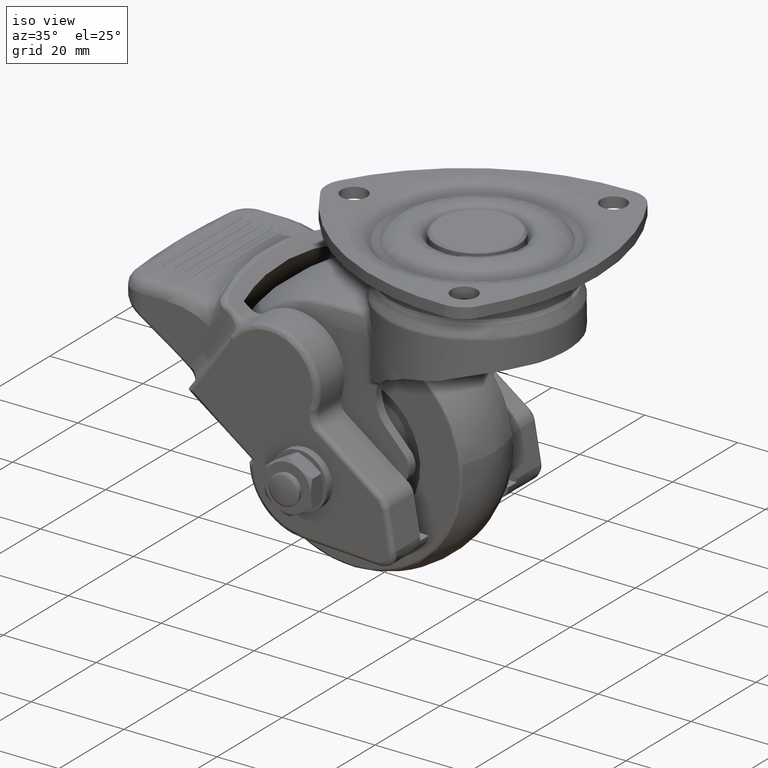
[diagram: clean part render]
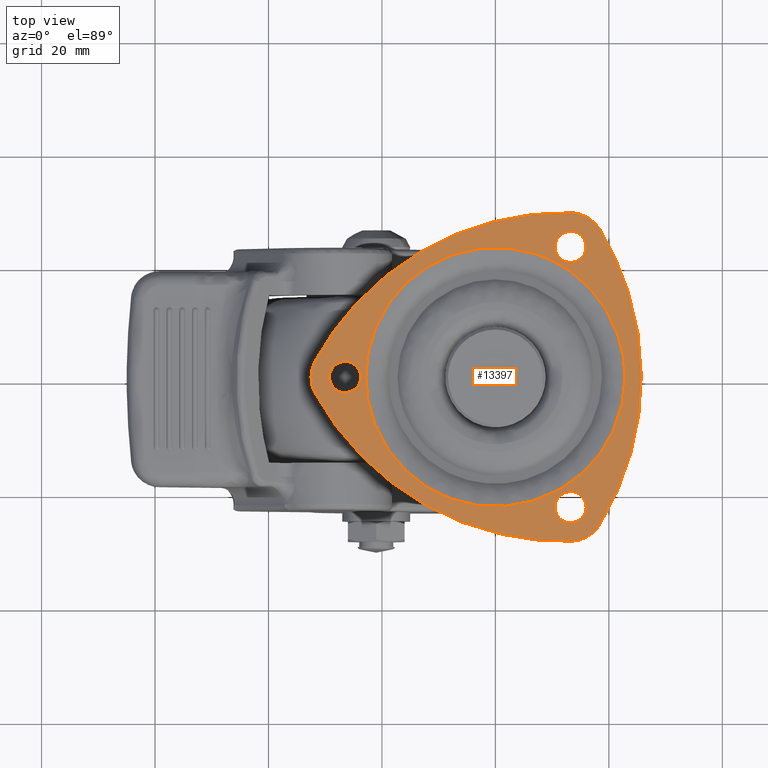
[diagram: tour spotlight — one face highlighted and labeled with its STEP entity id]
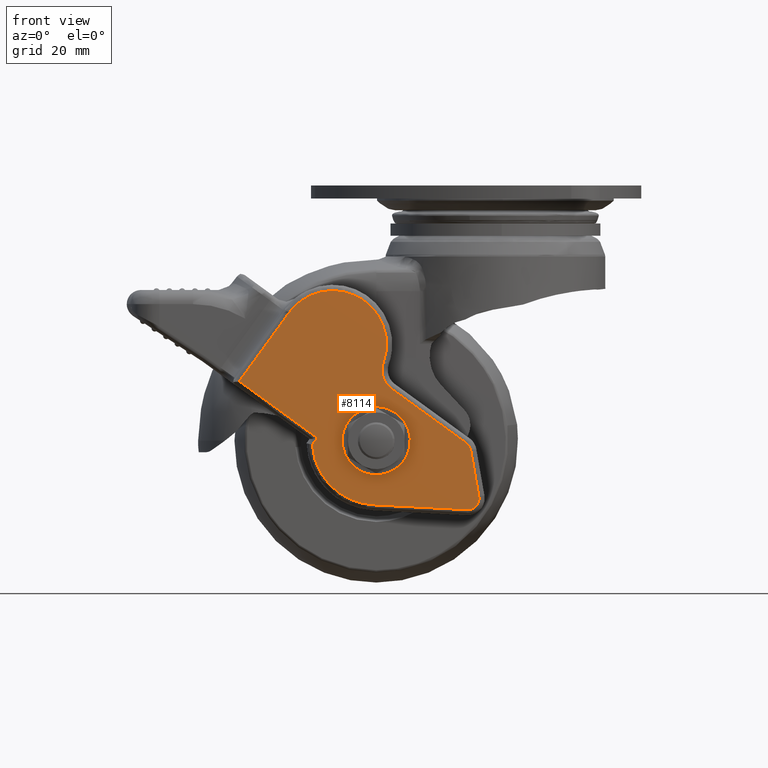
[diagram: tour spotlight — one face highlighted and labeled with its STEP entity id]
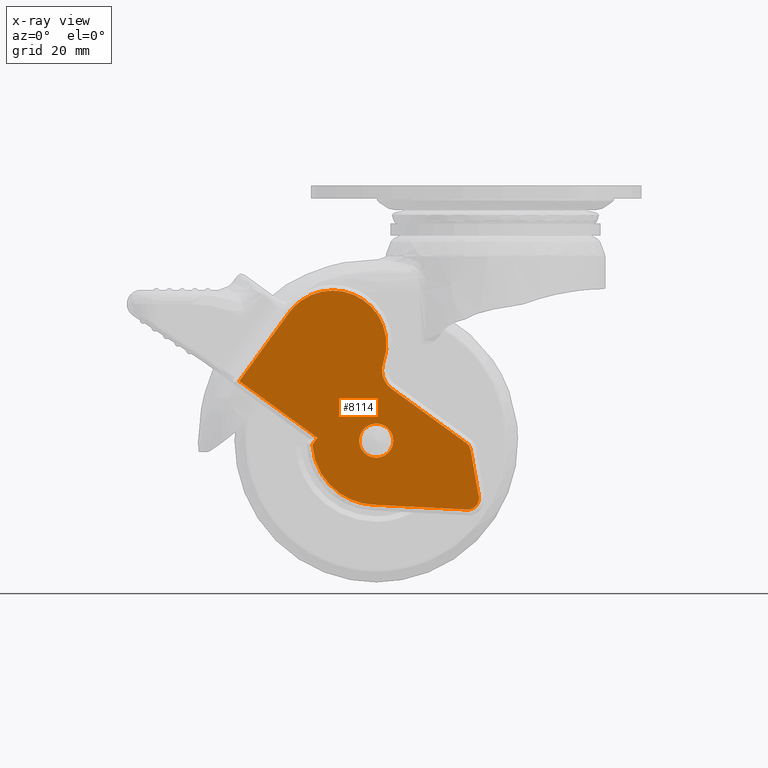
[diagram: x-ray of the same camera — body ghosted, this tour face saturated]
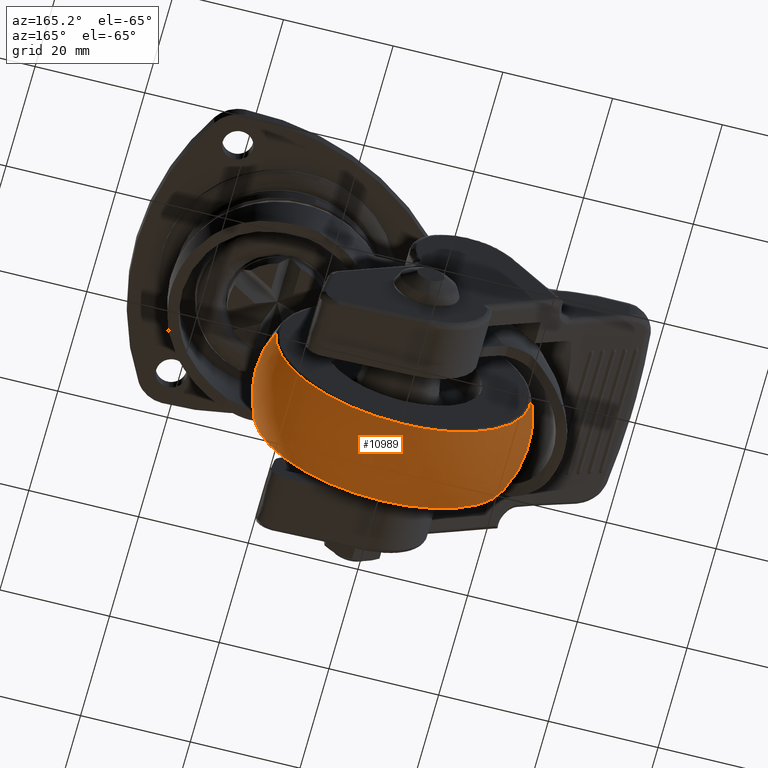
[diagram: tour spotlight — one face highlighted and labeled with its STEP entity id]
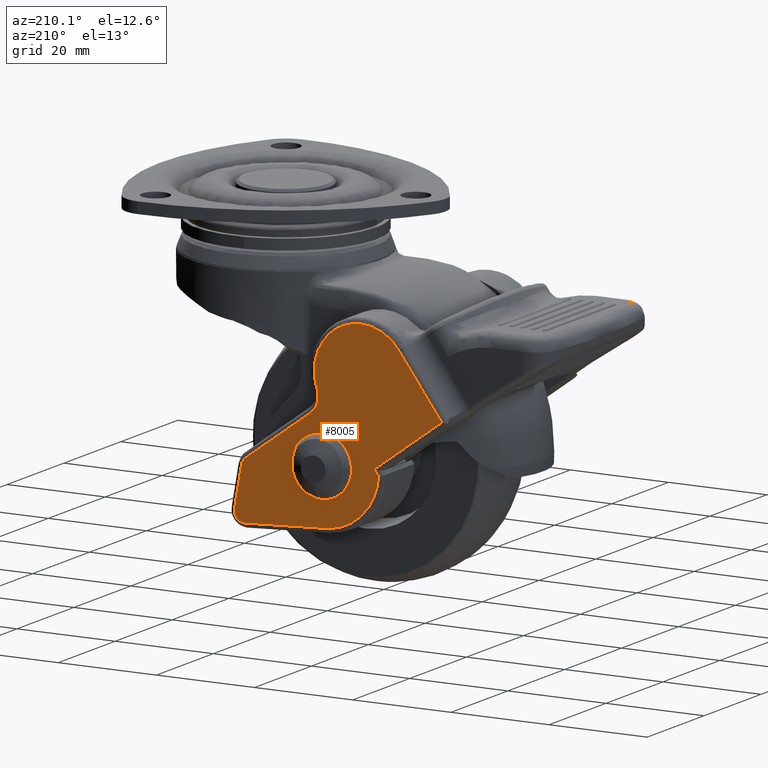
[diagram: tour spotlight — one face highlighted and labeled with its STEP entity id]
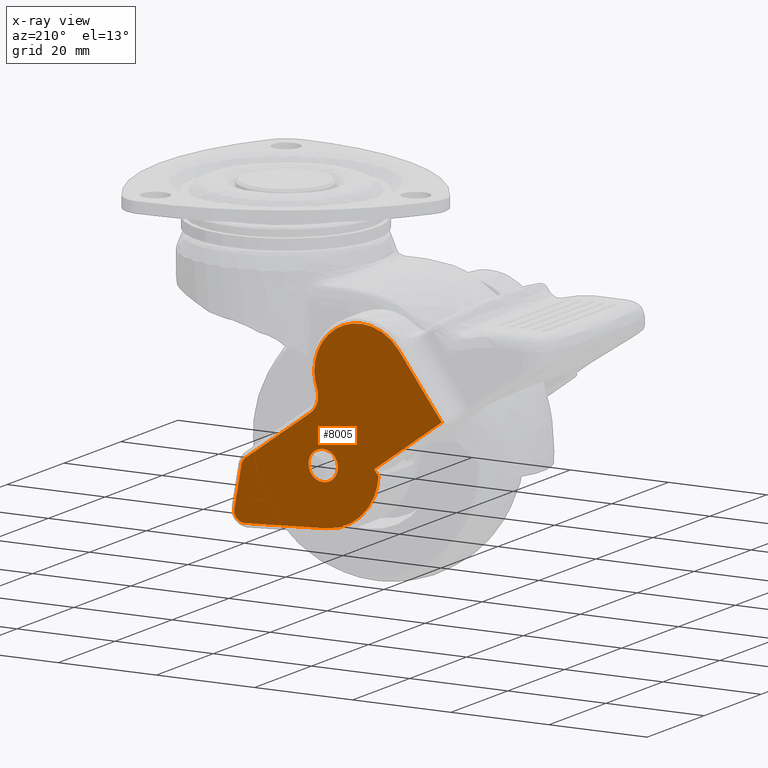
[diagram: x-ray of the same camera — body ghosted, this tour face saturated]
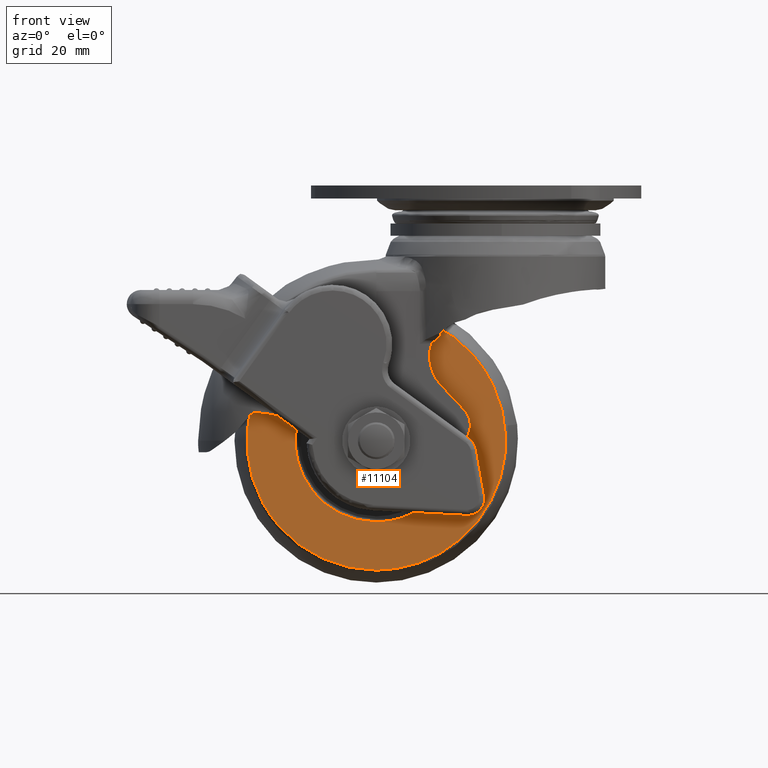
[diagram: tour spotlight — one face highlighted and labeled with its STEP entity id]
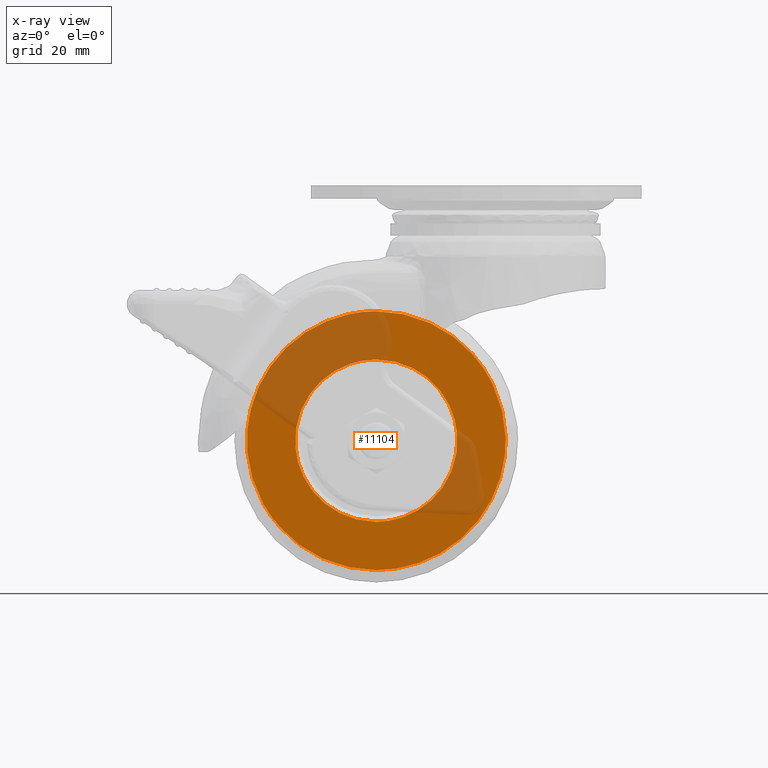
[diagram: x-ray of the same camera — body ghosted, this tour face saturated]
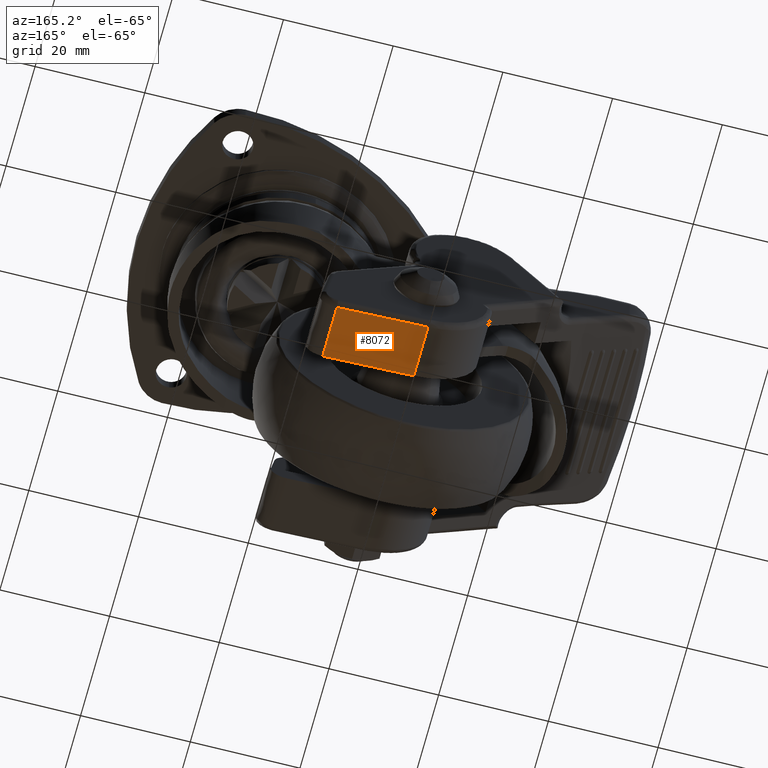
[diagram: tour spotlight — one face highlighted and labeled with its STEP entity id]
A machine part: a face-by-face anatomy tour. The part has 441 B-rep faces; the first image is the clean iso view, then the 6 largest visible faces are spotlighted one at a time (largest first), each with its STEP entity span.

Face 1 — top view, entity #13397. In plain terms, the highlighted face is a freeform B-spline surface patch.
Definition (entity closure, byte-faithful):
#11603=CARTESIAN_POINT('',(-26.824594145615460,-2.730776197463309,1.277743E-016));
#11604=VERTEX_POINT('',#11603);
#11605=CARTESIAN_POINT('',(-23.750000000000000,0.0,0.0));
#11606=VERTEX_POINT('',#11605);
#11607=CARTESIAN_POINT('',(-26.824594145615468,-2.730776197463309,1.277743E-016));
#11608=CARTESIAN_POINT('',(-26.662866329355406,-2.750000000000000,0.0));
#11609=CARTESIAN_POINT('',(-26.500000000000000,-2.750000000000000,0.0));
#11610=CARTESIAN_POINT('',(-23.750000000000011,-2.750000000000000,0.0));
#11611=CARTESIAN_POINT('',(-23.750000000000000,0.0,0.0));
#11619=(BOUNDED_CURVE()B_SPLINE_CURVE(2,(#11607,#11608,#11609,#11610,#11611),.UNSPECIFIED.,.F.,.U.)B_SPLINE_CURVE_WITH_KNOTS((3,2,3),(0.229562473477351,0.250000000000000,0.500000000000000),.UNSPECIFIED.)CURVE()GEOMETRIC_REPRESENTATION_ITEM()RATIONAL_B_SPLINE_CURVE((0.956026754112829,0.976055948288784,1.0,0.707106781186548,1.0))REPRESENTATION_ITEM(''));
#11620=EDGE_CURVE('',#11604,#11606,#11619,.T.);
#11622=CARTESIAN_POINT('',(-26.332116516206899,2.744870695655715,1.249001E-016));
#11623=VERTEX_POINT('',#11622);
#11624=CARTESIAN_POINT('',(-23.750000000000000,0.0,0.0));
#11625=CARTESIAN_POINT('',(-23.750000000000011,2.586941683854231,0.0));
#11626=CARTESIAN_POINT('',(-26.332116516206899,2.744870695655715,1.249001E-016));
#11634=(BOUNDED_CURVE()B_SPLINE_CURVE(2,(#11624,#11625,#11626),.UNSPECIFIED.,.F.,.U.)B_SPLINE_CURVE_WITH_KNOTS((3,3),(0.500000000000000,0.739332962232885),.UNSPECIFIED.)CURVE()GEOMETRIC_REPRESENTATION_ITEM()RATIONAL_B_SPLINE_CURVE((1.0,0.719603993293807,0.976072041653736))REPRESENTATION_ITEM(''));
#11635=EDGE_CURVE('',#11606,#11623,#11634,.T.);
#11702=CARTESIAN_POINT('',(-29.250000000000000,0.0,0.0));
#11703=VERTEX_POINT('',#11702);
#11704=CARTESIAN_POINT('',(-29.250000000000000,0.0,0.0));
#11705=CARTESIAN_POINT('',(-29.249999999999993,-2.442479945808934,0.0));
#11706=CARTESIAN_POINT('',(-26.824594145615471,-2.730776197463309,1.277743E-016));
#11714=(BOUNDED_CURVE()B_SPLINE_CURVE(2,(#11704,#11705,#11706),.UNSPECIFIED.,.F.,.U.)B_SPLINE_CURVE_WITH_KNOTS((3,3),(0.0,0.229562473477351),.UNSPECIFIED.)CURVE()GEOMETRIC_REPRESENTATION_ITEM()RATIONAL_B_SPLINE_CURVE((1.0,0.731050832897764,0.956026754112829))REPRESENTATION_ITEM(''));
#11715=EDGE_CURVE('',#11703,#11604,#11714,.T.);
#11749=CARTESIAN_POINT('',(-26.332116516206902,2.744870695655715,1.249001E-016));
#11750=CARTESIAN_POINT('',(-26.415979900856438,2.750000000000000,0.0));
#11751=CARTESIAN_POINT('',(-26.500000000000000,2.750000000000000,0.0));
#11752=CARTESIAN_POINT('',(-29.250000000000004,2.750000000000000,0.0));
#11753=CARTESIAN_POINT('',(-29.250000000000000,0.0,0.0));
#11761=(BOUNDED_CURVE()B_SPLINE_CURVE(2,(#11749,#11750,#11751,#11752,#11753),.UNSPECIFIED.,.F.,.U.)B_SPLINE_CURVE_WITH_KNOTS((3,2,3),(0.739332962232886,0.750000000000000,1.0),.UNSPECIFIED.)CURVE()GEOMETRIC_REPRESENTATION_ITEM()RATIONAL_B_SPLINE_CURVE((0.976072041653737,0.987502787892741,1.0,0.707106781186548,1.0))REPRESENTATION_ITEM(''));
#11762=EDGE_CURVE('',#11623,#11703,#11761,.T.);
#11789=CARTESIAN_POINT('',(12.925405854384540,20.218897802536691,1.277743E-016));
#11790=VERTEX_POINT('',#11789);
#11791=CARTESIAN_POINT('',(16.0,22.949674000000002,0.0));
#11792=VERTEX_POINT('',#11791);
#11793=CARTESIAN_POINT('',(12.925405854384538,20.218897802536695,1.277743E-016));
#11794=CARTESIAN_POINT('',(13.087133670644596,20.199674000000005,0.0));
#11795=CARTESIAN_POINT('',(13.250000000000000,20.199674000000002,0.0));
#11796=CARTESIAN_POINT('',(15.999999999999998,20.199674000000009,0.0));
#11797=CARTESIAN_POINT('',(16.0,22.949674000000002,0.0));
#11805=(BOUNDED_CURVE()B_SPLINE_CURVE(2,(#11793,#11794,#11795,#11796,#11797),.UNSPECIFIED.,.F.,.U.)B_SPLINE_CURVE_WITH_KNOTS((3,2,3),(0.229562473477351,0.250000000000000,0.500000000000000),.UNSPECIFIED.)CURVE()GEOMETRIC_REPRESENTATION_ITEM()RATIONAL_B_SPLINE_CURVE((0.956026754112829,0.976055948288784,1.0,0.707106781186548,1.0))REPRESENTATION_ITEM(''));
#11806=EDGE_CURVE('',#11790,#11792,#11805,.T.);
#11808=CARTESIAN_POINT('',(13.417883483793100,25.694544695655718,1.249001E-016));
#11809=VERTEX_POINT('',#11808);
#11810=CARTESIAN_POINT('',(16.0,22.949674000000002,0.0));
#11811=CARTESIAN_POINT('',(16.0,25.536615683854226,0.0));
#11812=CARTESIAN_POINT('',(13.417883483793100,25.694544695655718,1.249001E-016));
#11820=(BOUNDED_CURVE()B_SPLINE_CURVE(2,(#11810,#11811,#11812),.UNSPECIFIED.,.F.,.U.)B_SPLINE_CURVE_WITH_KNOTS((3,3),(0.500000000000000,0.739332962232885),.UNSPECIFIED.)CURVE()GEOMETRIC_REPRESENTATION_ITEM()RATIONAL_B_SPLINE_CURVE((1.0,0.719603993293807,0.976072041653736))REPRESENTATION_ITEM(''));
#11821=EDGE_CURVE('',#11792,#11809,#11820,.T.);
#11888=CARTESIAN_POINT('',(10.500000000000000,22.949674000000002,0.0));
#11889=VERTEX_POINT('',#11888);
#11890=CARTESIAN_POINT('',(10.500000000000000,22.949674000000002,0.0));
#11891=CARTESIAN_POINT('',(10.499999999999998,20.507194054191075,0.0));
#11892=CARTESIAN_POINT('',(12.925405854384540,20.218897802536691,1.277743E-016));
#11900=(BOUNDED_CURVE()B_SPLINE_CURVE(2,(#11890,#11891,#11892),.UNSPECIFIED.,.F.,.U.)B_SPLINE_CURVE_WITH_KNOTS((3,3),(0.0,0.229562473477351),.UNSPECIFIED.)CURVE()GEOMETRIC_REPRESENTATION_ITEM()RATIONAL_B_SPLINE_CURVE((1.0,0.731050832897764,0.956026754112828))REPRESENTATION_ITEM(''));
#11901=EDGE_CURVE('',#11889,#11790,#11900,.T.);
#11935=CARTESIAN_POINT('',(13.417883483793096,25.694544695655711,1.249001E-016));
#11936=CARTESIAN_POINT('',(13.334020099143558,25.699674000000002,0.0));
#11937=CARTESIAN_POINT('',(13.250000000000000,25.699674000000002,0.0));
#11938=CARTESIAN_POINT('',(10.499999999999998,25.699673999999991,0.0));
#11939=CARTESIAN_POINT('',(10.500000000000000,22.949674000000002,0.0));
#11947=(BOUNDED_CURVE()B_SPLINE_CURVE(2,(#11935,#11936,#11937,#11938,#11939),.UNSPECIFIED.,.F.,.U.)B_SPLINE_CURVE_WITH_KNOTS((3,2,3),(0.739332962232886,0.750000000000000,1.0),.UNSPECIFIED.)CURVE()GEOMETRIC_REPRESENTATION_ITEM()RATIONAL_B_SPLINE_CURVE((0.976072041653737,0.987502787892741,1.0,0.707106781186548,1.0))REPRESENTATION_ITEM(''));
#11948=EDGE_CURVE('',#11809,#11889,#11947,.T.);
#11975=CARTESIAN_POINT('',(12.925405854384540,-25.680449197463410,1.277743E-016));
#11976=VERTEX_POINT('',#11975);
#11977=CARTESIAN_POINT('',(16.0,-22.949673000000100,0.0));
#11978=VERTEX_POINT('',#11977);
#11979=CARTESIAN_POINT('',(12.925405854384538,-25.680449197463414,1.277743E-016));
#11980=CARTESIAN_POINT('',(13.087133670644596,-25.699673000000093,0.0));
#11981=CARTESIAN_POINT('',(13.250000000000000,-25.699673000000100,0.0));
#11982=CARTESIAN_POINT('',(15.999999999999998,-25.699673000000107,0.0));
#11983=CARTESIAN_POINT('',(16.0,-22.949673000000100,0.0));
#11991=(BOUNDED_CURVE()B_SPLINE_CURVE(2,(#11979,#11980,#11981,#11982,#11983),.UNSPECIFIED.,.F.,.U.)B_SPLINE_CURVE_WITH_KNOTS((3,2,3),(0.229562473477351,0.250000000000000,0.500000000000000),.UNSPECIFIED.)CURVE()GEOMETRIC_REPRESENTATION_ITEM()RATIONAL_B_SPLINE_CURVE((0.956026754112829,0.976055948288784,1.0,0.707106781186548,1.0))REPRESENTATION_ITEM(''));
#11992=EDGE_CURVE('',#11976,#11978,#11991,.T.);
#11994=CARTESIAN_POINT('',(13.417883483793100,-20.204802304344391,1.249001E-016));
#11995=VERTEX_POINT('',#11994);
#11996=CARTESIAN_POINT('',(16.0,-22.949673000000100,0.0));
#11997=CARTESIAN_POINT('',(16.0,-20.362731316145879,0.0));
#11998=CARTESIAN_POINT('',(13.417883483793100,-20.204802304344391,1.249001E-016));
#12006=(BOUNDED_CURVE()B_SPLINE_CURVE(2,(#11996,#11997,#11998),.UNSPECIFIED.,.F.,.U.)B_SPLINE_CURVE_WITH_KNOTS((3,3),(0.500000000000000,0.739332962232885),.UNSPECIFIED.)CURVE()GEOMETRIC_REPRESENTATION_ITEM()RATIONAL_B_SPLINE_CURVE((1.0,0.719603993293807,0.976072041653736))REPRESENTATION_ITEM(''));
#12007=EDGE_CURVE('',#11978,#11995,#12006,.T.);
#12074=CARTESIAN_POINT('',(10.500000000000000,-22.949673000000100,0.0));
#12075=VERTEX_POINT('',#12074);
#12076=CARTESIAN_POINT('',(10.500000000000000,-22.949673000000100,0.0));
#12077=CARTESIAN_POINT('',(10.499999999999998,-25.392152945809038,0.0));
#12078=CARTESIAN_POINT('',(12.925405854384540,-25.680449197463407,1.277743E-016));
#12086=(BOUNDED_CURVE()B_SPLINE_CURVE(2,(#12076,#12077,#12078),.UNSPECIFIED.,.F.,.U.)B_SPLINE_CURVE_WITH_KNOTS((3,3),(0.0,0.229562473477351),.UNSPECIFIED.)CURVE()GEOMETRIC_REPRESENTATION_ITEM()RATIONAL_B_SPLINE_CURVE((1.0,0.731050832897764,0.956026754112828))REPRESENTATION_ITEM(''));
#12087=EDGE_CURVE('',#12075,#11976,#12086,.T.);
#12121=CARTESIAN_POINT('',(13.417883483793098,-20.204802304344391,1.249001E-016));
#12122=CARTESIAN_POINT('',(13.334020099143560,-20.199673000000100,0.0));
#12123=CARTESIAN_POINT('',(13.250000000000000,-20.199673000000100,0.0));
#12124=CARTESIAN_POINT('',(10.499999999999998,-20.199673000000111,0.0));
#12125=CARTESIAN_POINT('',(10.500000000000000,-22.949673000000100,0.0));
#12133=(BOUNDED_CURVE()B_SPLINE_CURVE(2,(#12121,#12122,#12123,#12124,#12125),.UNSPECIFIED.,.F.,.U.)B_SPLINE_CURVE_WITH_KNOTS((3,2,3),(0.739332962232886,0.750000000000000,1.0),.UNSPECIFIED.)CURVE()GEOMETRIC_REPRESENTATION_ITEM()RATIONAL_B_SPLINE_CURVE((0.976072041653737,0.987502787892741,1.0,0.707106781186548,1.0))REPRESENTATION_ITEM(''));
#12134=EDGE_CURVE('',#11995,#12075,#12133,.T.);
#12373=CARTESIAN_POINT('',(-18.653898074394419,13.197922715108330,-1.093390E-015));
#12374=VERTEX_POINT('',#12373);
#12388=CARTESIAN_POINT('',(-22.850669080457550,0.0,0.0));
#12389=VERTEX_POINT('',#12388);
#12390=CARTESIAN_POINT('',(-22.850669080457550,0.0,0.0));
#12391=CARTESIAN_POINT('',(-22.850669080457546,7.266221170281439,0.0));
#12392=CARTESIAN_POINT('',(-18.653898074394416,13.197922715108326,-1.093390E-015));
#12400=(BOUNDED_CURVE()B_SPLINE_CURVE(2,(#12390,#12391,#12392),.UNSPECIFIED.,.F.,.U.)B_SPLINE_CURVE_WITH_KNOTS((3,3),(0.0,0.099340826589398),.UNSPECIFIED.)CURVE()GEOMETRIC_REPRESENTATION_ITEM()RATIONAL_B_SPLINE_CURVE((1.0,0.883614982162569,0.859724235321876))REPRESENTATION_ITEM(''));
#12401=EDGE_CURVE('',#12389,#12374,#12400,.T.);
#12403=CARTESIAN_POINT('',(22.850669080457550,0.0,0.0));
#12404=VERTEX_POINT('',#12403);
#12405=CARTESIAN_POINT('',(22.850669080457550,0.0,0.0));
#12406=CARTESIAN_POINT('',(22.850669080457546,-22.850669080457546,0.0));
#12407=CARTESIAN_POINT('',(0.0,-22.850669080457550,0.0));
#12408=CARTESIAN_POINT('',(-22.850669080457546,-22.850669080457546,0.0));
#12409=CARTESIAN_POINT('',(-22.850669080457550,0.0,0.0));
#12417=(BOUNDED_CURVE()B_SPLINE_CURVE(2,(#12405,#12406,#12407,#12408,#12409),.UNSPECIFIED.,.F.,.U.)B_SPLINE_CURVE_WITH_KNOTS((3,2,3),(0.500000000000000,0.750000000000000,1.0),.UNSPECIFIED.)CURVE()GEOMETRIC_REPRESENTATION_ITEM()RATIONAL_B_SPLINE_CURVE((1.0,0.707106781186547,1.0,0.707106781186547,1.0))REPRESENTATION_ITEM(''));
#12418=EDGE_CURVE('',#12404,#12389,#12417,.T.);
#12420=CARTESIAN_POINT('',(13.197922715108341,18.653898074394419,-9.719018E-016));
#12421=VERTEX_POINT('',#12420);
#12422=CARTESIAN_POINT('',(13.197922715108339,18.653898074394416,-9.719018E-016));
#12423=CARTESIAN_POINT('',(22.850669080457550,11.824430046801535,0.0));
#12424=CARTESIAN_POINT('',(22.850669080457550,0.0,0.0));
#12432=(BOUNDED_CURVE()B_SPLINE_CURVE(2,(#12422,#12423,#12424),.UNSPECIFIED.,.F.,.U.)B_SPLINE_CURVE_WITH_KNOTS((3,3),(0.349340826589398,0.500000000000000),.UNSPECIFIED.)CURVE()GEOMETRIC_REPRESENTATION_ITEM()RATIONAL_B_SPLINE_CURVE((0.859724235321876,0.823491799023979,1.0))REPRESENTATION_ITEM(''));
#12433=EDGE_CURVE('',#12421,#12404,#12432,.T.);
#12484=CARTESIAN_POINT('',(-18.653898074394416,13.197922715108326,-1.093390E-015));
#12485=CARTESIAN_POINT('',(-11.824430046801542,22.850669080457553,0.0));
#12486=CARTESIAN_POINT('',(0.0,22.850669080457550,0.0));
#12487=CARTESIAN_POINT('',(7.266221170281451,22.850669080457550,0.0));
#12488=CARTESIAN_POINT('',(13.197922715108342,18.653898074394423,-9.719018E-016));
#12496=(BOUNDED_CURVE()B_SPLINE_CURVE(2,(#12484,#12485,#12486,#12487,#12488),.UNSPECIFIED.,.F.,.U.)B_SPLINE_CURVE_WITH_KNOTS((3,2,3),(0.099340826589398,0.250000000000000,0.349340826589398),.UNSPECIFIED.)CURVE()GEOMETRIC_REPRESENTATION_ITEM()RATIONAL_B_SPLINE_CURVE((0.859724235321876,0.823491799023979,1.0,0.883614982162569,0.859724235321875))REPRESENTATION_ITEM(''));
#12497=EDGE_CURVE('',#12374,#12421,#12496,.T.);
#13276=CARTESIAN_POINT('',(-35.407548841360899,31.853379514801791,0.0));
#13277=CARTESIAN_POINT('',(28.616739386169861,31.853379514801791,0.0));
#13278=CARTESIAN_POINT('',(-35.407548841360899,-31.853376444295250,0.0));
#13279=CARTESIAN_POINT('',(28.616739386169861,-31.853376444295250,0.0));
#13280=B_SPLINE_SURFACE_WITH_KNOTS('',1,1,((#13276,#13278),(#13277,#13279)),.UNSPECIFIED.,.F.,.F.,.U.,(2,2),(2,2),(0.0,64.024288227530761),(0.0,63.706755959097052),.UNSPECIFIED.);
#13281=CARTESIAN_POINT('',(18.369201818529849,26.079173804453351,0.0));
#13282=VERTEX_POINT('',#13281);
#13283=CARTESIAN_POINT('',(13.400626615101521,28.947782728843048,0.0));
#13284=VERTEX_POINT('',#13283);
#13285=CARTESIAN_POINT('',(18.369201818529849,26.079173804453351,0.0));
#13286=CARTESIAN_POINT('',(16.665671970180849,28.865790037092776,0.0));
#13287=CARTESIAN_POINT('',(13.400626615101521,28.947782728843048,0.0));
#13295=(BOUNDED_CURVE()B_SPLINE_CURVE(2,(#13285,#13286,#13287),.UNSPECIFIED.,.F.,.U.)CURVE()GEOMETRIC_REPRESENTATION_ITEM()QUASI_UNIFORM_CURVE()RATIONAL_B_SPLINE_CURVE((1.0,0.878304632990336,1.0))REPRESENTATION_ITEM(''));
#13296=EDGE_CURVE('',#13282,#13284,#13295,.T.);
#13297=ORIENTED_EDGE('',*,*,#13296,.T.);
#13298=CARTESIAN_POINT('',(-31.769827433630951,2.868608924389780,0.0));
#13299=VERTEX_POINT('',#13298);
#13300=CARTESIAN_POINT('',(13.400626615101530,28.947782728843048,0.0));
#13301=CARTESIAN_POINT('',(-17.156038547551749,29.715131691521837,0.0));
#13302=CARTESIAN_POINT('',(-31.769827433630951,2.868608924389775,0.0));
#13310=(BOUNDED_CURVE()B_SPLINE_CURVE(2,(#13300,#13301,#13302),.UNSPECIFIED.,.F.,.U.)CURVE()GEOMETRIC_REPRESENTATION_ITEM()QUASI_UNIFORM_CURVE()RATIONAL_B_SPLINE_CURVE((1.0,0.853200256370594,1.0))REPRESENTATION_ITEM(''));
#13311=EDGE_CURVE('',#13284,#13299,#13310,.T.);
#13312=ORIENTED_EDGE('',*,*,#13311,.T.);
#13313=CARTESIAN_POINT('',(-31.769828012035550,-2.868608150926780,0.0));
#13314=VERTEX_POINT('',#13313);
#13315=CARTESIAN_POINT('',(-31.769827433630951,2.868608924389780,0.0));
#13316=CARTESIAN_POINT('',(-33.331342783626887,0.000000544157564,0.0));
#13317=CARTESIAN_POINT('',(-31.769828012035550,-2.868608150926780,0.0));
#13325=(BOUNDED_CURVE()B_SPLINE_CURVE(2,(#13315,#13316,#13317),.UNSPECIFIED.,.F.,.U.)CURVE()GEOMETRIC_REPRESENTATION_ITEM()QUASI_UNIFORM_CURVE()RATIONAL_B_SPLINE_CURVE((1.0,0.878304630588961,1.0))REPRESENTATION_ITEM(''));
#13326=EDGE_CURVE('',#13299,#13314,#13325,.T.);
#13327=ORIENTED_EDGE('',*,*,#13326,.T.);
#13328=CARTESIAN_POINT('',(13.400626615101540,-28.947781728843250,0.0));
#13329=VERTEX_POINT('',#13328);
#13330=CARTESIAN_POINT('',(-31.769828012035550,-2.868608150926780,0.0));
#13331=CARTESIAN_POINT('',(-17.156038600813027,-29.715130692859464,0.0));
#13332=CARTESIAN_POINT('',(13.400626615101521,-28.947781728843150,0.0));
#13340=(BOUNDED_CURVE()B_SPLINE_CURVE(2,(#13330,#13331,#13332),.UNSPECIFIED.,.F.,.U.)CURVE()GEOMETRIC_REPRESENTATION_ITEM()QUASI_UNIFORM_CURVE()RATIONAL_B_SPLINE_CURVE((1.0,0.853200255966014,1.0))REPRESENTATION_ITEM(''));
#13341=EDGE_CURVE('',#13314,#13329,#13340,.T.);
#13342=ORIENTED_EDGE('',*,*,#13341,.T.);
#13343=CARTESIAN_POINT('',(18.369201538223550,-26.079173856534499,0.0));
#13344=VERTEX_POINT('',#13343);
#13345=CARTESIAN_POINT('',(13.400626615101540,-28.947781728843250,0.0));
#13346=CARTESIAN_POINT('',(16.665671293823422,-28.865789054077798,0.0));
#13347=CARTESIAN_POINT('',(18.369201538223560,-26.079173856534499,0.0));
#13355=(BOUNDED_CURVE()B_SPLINE_CURVE(2,(#13345,#13346,#13347),.UNSPECIFIED.,.F.,.U.)CURVE()GEOMETRIC_REPRESENTATION_ITEM()QUASI_UNIFORM_CURVE()RATIONAL_B_SPLINE_CURVE((1.0,0.878304674578743,1.0))REPRESENTATION_ITEM(''));
#13356=EDGE_CURVE('',#13329,#13344,#13355,.T.);
#13357=ORIENTED_EDGE('',*,*,#13356,.T.);
#13358=CARTESIAN_POINT('',(18.369201538223550,-26.079173856534499,0.0));
#13359=CARTESIAN_POINT('',(34.312078163401253,-0.000000111719852,0.0));
#13360=CARTESIAN_POINT('',(18.369201818529859,26.079173804453340,0.0));
#13368=(BOUNDED_CURVE()B_SPLINE_CURVE(2,(#13358,#13359,#13360),.UNSPECIFIED.,.F.,.U.)CURVE()GEOMETRIC_REPRESENTATION_ITEM()QUASI_UNIFORM_CURVE()RATIONAL_B_SPLINE_CURVE((1.0,0.853200255376253,1.0))REPRESENTATION_ITEM(''));
#13369=EDGE_CURVE('',#13344,#13282,#13368,.T.);
#13370=ORIENTED_EDGE('',*,*,#13369,.T.);
#13371=EDGE_LOOP('',(#13297,#13312,#13327,#13342,#13357,#13370));
#13372=FACE_OUTER_BOUND('',#13371,.T.);
#13373=ORIENTED_EDGE('',*,*,#12418,.T.);
#13374=ORIENTED_EDGE('',*,*,#12401,.T.);
#13375=ORIENTED_EDGE('',*,*,#12497,.T.);
#13376=ORIENTED_EDGE('',*,*,#12433,.T.);
#13377=EDGE_LOOP('',(#13373,#13374,#13375,#13376));
#13378=FACE_BOUND('',#13377,.T.);
#13379=ORIENTED_EDGE('',*,*,#12007,.F.);
#13380=ORIENTED_EDGE('',*,*,#11992,.F.);
#13381=ORIENTED_EDGE('',*,*,#12087,.F.);
#13382=ORIENTED_EDGE('',*,*,#12134,.F.);
#13383=EDGE_LOOP('',(#13379,#13380,#13381,#13382));
#13384=FACE_BOUND('',#13383,.T.);
#13385=ORIENTED_EDGE('',*,*,#11821,.F.);
#13386=ORIENTED_EDGE('',*,*,#11806,.F.);
#13387=ORIENTED_EDGE('',*,*,#11901,.F.);
#13388=ORIENTED_EDGE('',*,*,#11948,.F.);
#13389=EDGE_LOOP('',(#13385,#13386,#13387,#13388));
#13390=FACE_BOUND('',#13389,.T.);
#13391=ORIENTED_EDGE('',*,*,#11635,.F.);
#13392=ORIENTED_EDGE('',*,*,#11620,.F.);
#13393=ORIENTED_EDGE('',*,*,#11715,.F.);
#13394=ORIENTED_EDGE('',*,*,#11762,.F.);
#13395=EDGE_LOOP('',(#13391,#13392,#13393,#13394));
#13396=FACE_BOUND('',#13395,.T.);
#13397=ADVANCED_FACE('',(#13372,#13378,#13384,#13390,#13396),#13280,.F.);

Face 2 — front view, entity #8114. An x-ray twin of the same camera follows (body ghosted, this face saturated) — the face is partly hidden behind the body. In plain terms, the highlighted face is a freeform B-spline surface patch.
Definition (entity closure, byte-faithful):
#87=CARTESIAN_POINT('',(-22.856098769992840,-23.100000000000001,-42.643117025390609));
#88=VERTEX_POINT('',#87);
#94=CARTESIAN_POINT('',(-21.0,-23.100000000000001,-48.0));
#95=VERTEX_POINT('',#94);
#96=CARTESIAN_POINT('',(-22.856098769992837,-23.100000000000009,-42.643117025390609));
#97=CARTESIAN_POINT('',(-23.999999999999996,-23.100000000000005,-43.543965174776453));
#98=CARTESIAN_POINT('',(-24.0,-23.100000000000001,-45.0));
#99=CARTESIAN_POINT('',(-23.999999999999996,-23.100000000000001,-48.000000000000014));
#100=CARTESIAN_POINT('',(-21.0,-23.100000000000001,-48.0));
#108=(BOUNDED_CURVE()B_SPLINE_CURVE(2,(#96,#97,#98,#99,#100),.UNSPECIFIED.,.F.,.U.)B_SPLINE_CURVE_WITH_KNOTS((3,2,3),(0.107127276430993,0.250000000000000,0.500000000000000),.UNSPECIFIED.)CURVE()GEOMETRIC_REPRESENTATION_ITEM()RATIONAL_B_SPLINE_CURVE((0.856547314594228,0.832614192452916,1.0,0.707106781186548,1.0))REPRESENTATION_ITEM(''));
#109=EDGE_CURVE('',#88,#95,#108,.T.);
#111=CARTESIAN_POINT('',(-18.753132128612059,-23.100000000000001,-43.012140656755740));
#112=VERTEX_POINT('',#111);
#113=CARTESIAN_POINT('',(-21.0,-23.100000000000001,-48.0));
#114=CARTESIAN_POINT('',(-18.000000000000007,-23.100000000000001,-48.000000000000014));
#115=CARTESIAN_POINT('',(-18.0,-23.100000000000001,-45.0));
#116=CARTESIAN_POINT('',(-18.000000000000004,-23.099999999999998,-43.863402285723005));
#117=CARTESIAN_POINT('',(-18.753132128612062,-23.099999999999998,-43.012140656755733));
#125=(BOUNDED_CURVE()B_SPLINE_CURVE(2,(#113,#114,#115,#116,#117),.UNSPECIFIED.,.F.,.U.)B_SPLINE_CURVE_WITH_KNOTS((3,2,3),(0.500000000000000,0.750000000000000,0.865779834191141),.UNSPECIFIED.)CURVE()GEOMETRIC_REPRESENTATION_ITEM()RATIONAL_B_SPLINE_CURVE((1.0,0.707106781186548,1.0,0.864355486760276,0.854350167535218))REPRESENTATION_ITEM(''));
#126=EDGE_CURVE('',#95,#112,#125,.T.);
#198=CARTESIAN_POINT('',(-21.0,-23.100000000000001,-41.999999999999993));
#199=VERTEX_POINT('',#198);
#200=CARTESIAN_POINT('',(-18.753132128612062,-23.099999999999998,-43.012140656755733));
#201=CARTESIAN_POINT('',(-19.648597895348875,-23.099999999999994,-42.0));
#202=CARTESIAN_POINT('',(-21.0,-23.100000000000001,-41.999999999999993));
#210=(BOUNDED_CURVE()B_SPLINE_CURVE(2,(#200,#201,#202),.UNSPECIFIED.,.F.,.U.)B_SPLINE_CURVE_WITH_KNOTS((3,3),(0.865779834191141,1.0),.UNSPECIFIED.)CURVE()GEOMETRIC_REPRESENTATION_ITEM()RATIONAL_B_SPLINE_CURVE((0.854350167535218,0.842751294426272,1.0))REPRESENTATION_ITEM(''));
#211=EDGE_CURVE('',#112,#199,#210,.T.);
#213=CARTESIAN_POINT('',(-21.0,-23.100000000000001,-41.999999999999993));
#214=CARTESIAN_POINT('',(-22.039465737141537,-23.099999999999998,-41.999999999999993));
#215=CARTESIAN_POINT('',(-22.856098769992848,-23.100000000000005,-42.643117025390609));
#223=(BOUNDED_CURVE()B_SPLINE_CURVE(2,(#213,#214,#215),.UNSPECIFIED.,.F.,.U.)B_SPLINE_CURVE_WITH_KNOTS((3,3),(0.0,0.107127276430993),.UNSPECIFIED.)CURVE()GEOMETRIC_REPRESENTATION_ITEM()RATIONAL_B_SPLINE_CURVE((1.0,0.874492588733632,0.856547314594228))REPRESENTATION_ITEM(''));
#224=EDGE_CURVE('',#199,#88,#223,.T.);
#4781=CARTESIAN_POINT('',(-19.746865843460750,-23.100000000000001,-31.228028126022249));
#4782=VERTEX_POINT('',#4781);
#4815=CARTESIAN_POINT('',(-36.375663025766947,-23.100000000000001,-22.439333280015500));
#4816=VERTEX_POINT('',#4815);
#4830=CARTESIAN_POINT('',(-19.746865843460750,-23.100000000000001,-31.228028126022249));
#4831=CARTESIAN_POINT('',(-16.968023244275305,-23.099999999999998,-23.473388399506373));
#4832=CARTESIAN_POINT('',(-24.250902177111069,-23.100000000000001,-19.624222525091181));
#4833=CARTESIAN_POINT('',(-31.533781109946840,-23.099999999999998,-15.775056650675985));
#4834=CARTESIAN_POINT('',(-36.375663025766947,-23.100000000000001,-22.439333280015500));
#4842=(BOUNDED_CURVE()B_SPLINE_CURVE(2,(#4830,#4831,#4832,#4833,#4834),.UNSPECIFIED.,.F.,.U.)B_SPLINE_CURVE_WITH_KNOTS((3,2,3),(0.0,0.500000000000000,1.0),.UNSPECIFIED.)CURVE()GEOMETRIC_REPRESENTATION_ITEM()RATIONAL_B_SPLINE_CURVE((1.0,0.755525062482082,1.0,0.755525062482082,1.0))REPRESENTATION_ITEM(''));
#4843=EDGE_CURVE('',#4782,#4816,#4842,.T.);
#4868=CARTESIAN_POINT('',(-45.142111756922503,-23.100000000000001,-34.505316172214663));
#4869=VERTEX_POINT('',#4868);
#4883=CARTESIAN_POINT('',(-36.375663025766947,-23.100000000000001,-22.439333280015500));
#4884=CARTESIAN_POINT('',(-45.142111756922503,-23.100000000000001,-34.505316172214663));
#4885=QUASI_UNIFORM_CURVE('',1,(#4883,#4884),.UNSPECIFIED.,.F.,.U.);
#4886=EDGE_CURVE('',#4816,#4869,#4885,.T.);
#4909=CARTESIAN_POINT('',(-18.332475755699651,-23.100000000000001,-35.813457628628257));
#4910=VERTEX_POINT('',#4909);
#4940=CARTESIAN_POINT('',(-18.332475755699651,-23.100000000000001,-35.813457628628257));
#4941=CARTESIAN_POINT('',(-20.758429708002947,-23.099999999999991,-34.050899444325687));
#4942=CARTESIAN_POINT('',(-19.746865843460782,-23.100000000000001,-31.228028126022242));
#4950=(BOUNDED_CURVE()B_SPLINE_CURVE(2,(#4940,#4941,#4942),.UNSPECIFIED.,.F.,.U.)CURVE()GEOMETRIC_REPRESENTATION_ITEM()QUASI_UNIFORM_CURVE()RATIONAL_B_SPLINE_CURVE((1.0,0.800130208874547,1.0))REPRESENTATION_ITEM(''));
#4951=EDGE_CURVE('',#4910,#4782,#4950,.T.);
#4979=CARTESIAN_POINT('',(-31.388823780488199,-23.100000000000001,-44.497664494435902));
#4980=VERTEX_POINT('',#4979);
#4994=CARTESIAN_POINT('',(-45.142111756922503,-23.100000000000001,-34.505316172214663));
#4995=CARTESIAN_POINT('',(-31.388823780488199,-23.100000000000001,-44.497664494435902));
#4996=QUASI_UNIFORM_CURVE('',1,(#4994,#4995),.UNSPECIFIED.,.F.,.U.);
#4997=EDGE_CURVE('',#4869,#4980,#4996,.T.);
#5016=CARTESIAN_POINT('',(-5.151023325881050,-23.100000000000001,-45.390343134423901));
#5017=VERTEX_POINT('',#5016);
#5039=CARTESIAN_POINT('',(-5.151023325881050,-23.100000000000001,-45.390343134423901));
#5040=CARTESIAN_POINT('',(-18.332475755699651,-23.100000000000001,-35.813457628628257));
#5041=QUASI_UNIFORM_CURVE('',1,(#5039,#5040),.UNSPECIFIED.,.F.,.U.);
#5042=EDGE_CURVE('',#5017,#4910,#5041,.T.);
#5063=CARTESIAN_POINT('',(-32.277026720861997,-23.100000000000001,-45.720170662352402));
#5064=VERTEX_POINT('',#5063);
#5095=CARTESIAN_POINT('',(-31.388823780488199,-23.100000000000001,-44.497664494435902));
#5096=CARTESIAN_POINT('',(-32.277026720861997,-23.100000000000001,-45.720170662352402));
#5097=QUASI_UNIFORM_CURVE('',1,(#5095,#5096),.UNSPECIFIED.,.F.,.U.);
#5098=EDGE_CURVE('',#4980,#5064,#5097,.T.);
#5126=CARTESIAN_POINT('',(-4.356978493975499,-23.100000000000001,-46.661080644666299));
#5127=VERTEX_POINT('',#5126);
#5157=CARTESIAN_POINT('',(-4.356978493975510,-23.100000000000001,-46.661080644666299));
#5158=CARTESIAN_POINT('',(-4.497295308502892,-23.099999999999998,-45.865304445450569));
#5159=CARTESIAN_POINT('',(-5.151023325881059,-23.100000000000001,-45.390343134423922));
#5167=(BOUNDED_CURVE()B_SPLINE_CURVE(2,(#5157,#5158,#5159),.UNSPECIFIED.,.F.,.U.)CURVE()GEOMETRIC_REPRESENTATION_ITEM()QUASI_UNIFORM_CURVE()RATIONAL_B_SPLINE_CURVE((1.0,0.927183874192003,1.0))REPRESENTATION_ITEM(''));
#5168=EDGE_CURVE('',#5127,#5017,#5167,.T.);
#5192=CARTESIAN_POINT('',(-21.591395282448399,-23.100000000000001,-56.284513743937097));
#5193=VERTEX_POINT('',#5192);
#5207=CARTESIAN_POINT('',(-32.277026720861862,-23.100000000000001,-45.720170662352402));
#5208=CARTESIAN_POINT('',(-31.635987105807590,-23.099999999999991,-55.758099013285779));
#5209=CARTESIAN_POINT('',(-21.591395282448399,-23.100000000000001,-56.284513743937133));
#5217=(BOUNDED_CURVE()B_SPLINE_CURVE(2,(#5207,#5208,#5209),.UNSPECIFIED.,.F.,.U.)CURVE()GEOMETRIC_REPRESENTATION_ITEM()QUASI_UNIFORM_CURVE()RATIONAL_B_SPLINE_CURVE((1.0,0.746951850098608,1.0))REPRESENTATION_ITEM(''));
#5218=EDGE_CURVE('',#5064,#5193,#5217,.T.);
#5251=CARTESIAN_POINT('',(-2.920145505379240,-23.100000000000001,-54.809768579992401));
#5252=VERTEX_POINT('',#5251);
#5274=CARTESIAN_POINT('',(-2.920145505379240,-23.100000000000001,-54.809768579992401));
#5275=CARTESIAN_POINT('',(-4.356978493975499,-23.100000000000001,-46.661080644666299));
#5276=QUASI_UNIFORM_CURVE('',1,(#5274,#5275),.UNSPECIFIED.,.F.,.U.);
#5277=EDGE_CURVE('',#5252,#5127,#5276,.T.);
#5298=CARTESIAN_POINT('',(-4.994432912485800,-23.100000000000001,-57.154324069509187));
#5299=VERTEX_POINT('',#5298);
#5315=CARTESIAN_POINT('',(-21.591395282448399,-23.100000000000001,-56.284513743937097));
#5316=CARTESIAN_POINT('',(-4.994432912485800,-23.100000000000001,-57.154324069509187));
#5317=QUASI_UNIFORM_CURVE('',1,(#5315,#5316),.UNSPECIFIED.,.F.,.U.);
#5318=EDGE_CURVE('',#5193,#5299,#5317,.T.);
#5347=CARTESIAN_POINT('',(-4.994432912485802,-23.100000000000001,-57.154324069509236));
#5348=CARTESIAN_POINT('',(-4.031069478566166,-23.099999999999998,-57.204811807723459));
#5349=CARTESIAN_POINT('',(-3.391849536664271,-23.100000000000001,-56.482305071839043));
#5350=CARTESIAN_POINT('',(-2.752629594762377,-23.099999999999998,-55.759798335954621));
#5351=CARTESIAN_POINT('',(-2.920145505379237,-23.100000000000001,-54.809768579992401));
#5359=(BOUNDED_CURVE()B_SPLINE_CURVE(2,(#5347,#5348,#5349,#5350,#5351),.UNSPECIFIED.,.F.,.U.)B_SPLINE_CURVE_WITH_KNOTS((3,2,3),(0.0,0.500000000000000,1.0),.UNSPECIFIED.)CURVE()GEOMETRIC_REPRESENTATION_ITEM()RATIONAL_B_SPLINE_CURVE((1.0,0.900698235756252,1.0,0.900698235756252,1.0))REPRESENTATION_ITEM(''));
#5360=EDGE_CURVE('',#5299,#5252,#5359,.T.);
#8090=CARTESIAN_POINT('',(-47.252616422125520,-23.100000000000001,-16.594037108221901));
#8091=CARTESIAN_POINT('',(-0.779283624402634,-23.100000000000001,-16.594037108221901));
#8092=CARTESIAN_POINT('',(-47.252616422125520,-23.100000000000001,-59.086739453107583));
#8093=CARTESIAN_POINT('',(-0.779283624402634,-23.100000000000001,-59.086739453107583));
#8094=B_SPLINE_SURFACE_WITH_KNOTS('',1,1,((#8090,#8092),(#8091,#8093)),.UNSPECIFIED.,.F.,.F.,.U.,(2,2),(2,2),(0.0,46.473332797722883),(0.0,42.492702344885679),.UNSPECIFIED.);
#8095=ORIENTED_EDGE('',*,*,#4951,.T.);
#8096=ORIENTED_EDGE('',*,*,#4843,.T.);
#8097=ORIENTED_EDGE('',*,*,#4886,.T.);
#8098=ORIENTED_EDGE('',*,*,#4997,.T.);
#8099=ORIENTED_EDGE('',*,*,#5098,.T.);
#8100=ORIENTED_EDGE('',*,*,#5218,.T.);
#8101=ORIENTED_EDGE('',*,*,#5318,.T.);
#8102=ORIENTED_EDGE('',*,*,#5360,.T.);
#8103=ORIENTED_EDGE('',*,*,#5277,.T.);
#8104=ORIENTED_EDGE('',*,*,#5168,.T.);
#8105=ORIENTED_EDGE('',*,*,#5042,.T.);
#8106=EDGE_LOOP('',(#8095,#8096,#8097,#8098,#8099,#8100,#8101,#8102,#8103,#8104,#8105));
#8107=FACE_OUTER_BOUND('',#8106,.T.);
#8108=ORIENTED_EDGE('',*,*,#126,.F.);
#8109=ORIENTED_EDGE('',*,*,#109,.F.);
#8110=ORIENTED_EDGE('',*,*,#224,.F.);
#8111=ORIENTED_EDGE('',*,*,#211,.F.);
#8112=EDGE_LOOP('',(#8108,#8109,#8110,#8111));
#8113=FACE_BOUND('',#8112,.T.);
#8114=ADVANCED_FACE('',(#8107,#8113),#8094,.F.);

Face 3 — auxiliary view, entity #10989. In plain terms, the highlighted face is a freeform B-spline surface patch.
Definition (entity closure, byte-faithful):
#10347=CARTESIAN_POINT('',(-8.413028593978995,7.714285718532343,-66.688585090701650));
#10348=VERTEX_POINT('',#10347);
#10362=CARTESIAN_POINT('',(-21.171924386812780,7.714285721941437,-35.360322038173152));
#10363=VERTEX_POINT('',#10362);
#10364=CARTESIAN_POINT('',(-8.413028593978995,7.714285718532343,-66.688585090701650));
#10365=CARTESIAN_POINT('',(-23.263141949676708,7.714285718029690,-60.928208018717896));
#10366=CARTESIAN_POINT('',(-23.263141949676701,7.714285718029690,-45.0));
#10367=CARTESIAN_POINT('',(-23.263141949676701,7.714285718029691,-39.953328192760928));
#10368=CARTESIAN_POINT('',(-21.171924386812783,7.714285721941437,-35.360322038173152));
#10376=(BOUNDED_CURVE()B_SPLINE_CURVE(2,(#10364,#10365,#10366,#10367,#10368),.UNSPECIFIED.,.F.,.U.)B_SPLINE_CURVE_WITH_KNOTS((3,2,3),(0.561409344290420,0.750000000000000,0.820375489890874),.UNSPECIFIED.)CURVE()GEOMETRIC_REPRESENTATION_ITEM()RATIONAL_B_SPLINE_CURVE((0.891453974558045,0.779052303244326,1.0,0.917549984961153,0.881519651521257))REPRESENTATION_ITEM(''));
#10377=EDGE_CURVE('',#10348,#10363,#10376,.T.);
#10470=CARTESIAN_POINT('',(0.0,7.714285776253419,-21.736857927520191));
#10471=VERTEX_POINT('',#10470);
#10472=CARTESIAN_POINT('',(-21.171924386812783,7.714285721941437,-35.360322038173152));
#10473=CARTESIAN_POINT('',(-14.969096384184027,7.714285738788292,-21.736858006540107));
#10474=CARTESIAN_POINT('',(0.0,7.714285776253419,-21.736857927520191));
#10482=(BOUNDED_CURVE()B_SPLINE_CURVE(2,(#10472,#10473,#10474),.UNSPECIFIED.,.F.,.U.)B_SPLINE_CURVE_WITH_KNOTS((3,3),(0.820375489890875,1.0),.UNSPECIFIED.)CURVE()GEOMETRIC_REPRESENTATION_ITEM()RATIONAL_B_SPLINE_CURVE((0.881519651521256,0.789556796225395,1.0))REPRESENTATION_ITEM(''));
#10483=EDGE_CURVE('',#10363,#10471,#10482,.T.);
#10485=CARTESIAN_POINT('',(23.107549775324749,7.714285776202237,-42.313939228833618));
#10486=VERTEX_POINT('',#10485);
#10500=CARTESIAN_POINT('',(0.0,7.714285718029690,-68.263141949676694));
#10501=VERTEX_POINT('',#10500);
#10502=CARTESIAN_POINT('',(23.107549775324749,7.714285776202238,-42.313939228833618));
#10503=CARTESIAN_POINT('',(23.263141949676704,7.714285718029689,-43.652463215104518));
#10504=CARTESIAN_POINT('',(23.263141949676701,7.714285718029690,-45.0));
#10505=CARTESIAN_POINT('',(23.263141949676701,7.714285718029690,-68.263141949676708));
#10506=CARTESIAN_POINT('',(0.0,7.714285718029690,-68.263141949676694));
#10514=(BOUNDED_CURVE()B_SPLINE_CURVE(2,(#10502,#10503,#10504,#10505,#10506),.UNSPECIFIED.,.F.,.U.)B_SPLINE_CURVE_WITH_KNOTS((3,2,3),(0.229999999999437,0.250000000000000,0.500000000000000),.UNSPECIFIED.)CURVE()GEOMETRIC_REPRESENTATION_ITEM()RATIONAL_B_SPLINE_CURVE((0.956886118189551,0.976568542494264,1.0,0.707106781186548,1.0))REPRESENTATION_ITEM(''));
#10515=EDGE_CURVE('',#10486,#10501,#10514,.T.);
#10517=CARTESIAN_POINT('',(0.0,7.714285718029690,-68.263141949676694));
#10518=CARTESIAN_POINT('',(-4.353858934815966,7.714285718029689,-68.263141949676694));
#10519=CARTESIAN_POINT('',(-8.413028593978995,7.714285718532343,-66.688585090701650));
#10527=(BOUNDED_CURVE()B_SPLINE_CURVE(2,(#10517,#10518,#10519),.UNSPECIFIED.,.F.,.U.)B_SPLINE_CURVE_WITH_KNOTS((3,3),(0.500000000000000,0.561409344290420),.UNSPECIFIED.)CURVE()GEOMETRIC_REPRESENTATION_ITEM()RATIONAL_B_SPLINE_CURVE((1.0,0.928054477942222,0.891453974558045))REPRESENTATION_ITEM(''));
#10528=EDGE_CURVE('',#10501,#10348,#10527,.T.);
#10563=CARTESIAN_POINT('',(-20.307174399721191,-7.714286617588055,-56.348675786152441));
#10564=VERTEX_POINT('',#10563);
#10565=CARTESIAN_POINT('',(0.0,-7.714289103665771,-21.736859355431040));
#10566=VERTEX_POINT('',#10565);
#10567=CARTESIAN_POINT('',(-20.307174399721195,-7.714286617588055,-56.348675786152441));
#10568=CARTESIAN_POINT('',(-23.263142188361350,-7.714287052508189,-51.059305906439384));
#10569=CARTESIAN_POINT('',(-23.263142188361350,-7.714287476367421,-45.000000771896197));
#10570=CARTESIAN_POINT('',(-23.263142188361350,-7.714289103665772,-21.736859355431033));
#10571=CARTESIAN_POINT('',(0.0,-7.714289103665771,-21.736859355431040));
#10579=(BOUNDED_CURVE()B_SPLINE_CURVE(2,(#10567,#10568,#10569,#10570,#10571),.UNSPECIFIED.,.F.,.U.)B_SPLINE_CURVE_WITH_KNOTS((3,2,3),(0.666878559323496,0.750000000000000,1.0),.UNSPECIFIED.)CURVE()GEOMETRIC_REPRESENTATION_ITEM()RATIONAL_B_SPLINE_CURVE((0.869991155357281,0.902617174751389,1.0,0.707106781186547,1.0))REPRESENTATION_ITEM(''));
#10580=EDGE_CURVE('',#10564,#10566,#10579,.T.);
#10683=CARTESIAN_POINT('',(0.0,-7.714285849069070,-68.263142188361357));
#10684=VERTEX_POINT('',#10683);
#10685=CARTESIAN_POINT('',(0.0,-7.714285849069070,-68.263142188361357));
#10686=CARTESIAN_POINT('',(-13.648768663127660,-7.714285849069070,-68.263142188361357));
#10687=CARTESIAN_POINT('',(-20.307174399721191,-7.714286617588055,-56.348675786152441));
#10695=(BOUNDED_CURVE()B_SPLINE_CURVE(2,(#10685,#10686,#10687),.UNSPECIFIED.,.F.,.U.)B_SPLINE_CURVE_WITH_KNOTS((3,3),(0.500000000000000,0.666878559323496),.UNSPECIFIED.)CURVE()GEOMETRIC_REPRESENTATION_ITEM()RATIONAL_B_SPLINE_CURVE((1.0,0.804489606435159,0.869991155357280))REPRESENTATION_ITEM(''));
#10696=EDGE_CURVE('',#10684,#10564,#10695,.T.);
#10698=CARTESIAN_POINT('',(23.107549890422050,-7.714285849040151,-42.313939215465894));
#10699=VERTEX_POINT('',#10698);
#10700=CARTESIAN_POINT('',(23.107549890422050,-7.714285849040151,-42.313939215465894));
#10701=CARTESIAN_POINT('',(23.263142188361346,-7.714285849069070,-43.652463201289848));
#10702=CARTESIAN_POINT('',(23.263142188361350,-7.714285849069070,-45.0));
#10703=CARTESIAN_POINT('',(23.263142188361350,-7.714285849069070,-68.263142188361357));
#10704=CARTESIAN_POINT('',(0.0,-7.714285849069070,-68.263142188361357));
#10712=(BOUNDED_CURVE()B_SPLINE_CURVE(2,(#10700,#10701,#10702,#10703,#10704),.UNSPECIFIED.,.F.,.U.)B_SPLINE_CURVE_WITH_KNOTS((3,2,3),(0.229999999999601,0.250000000000000,0.500000000000000),.UNSPECIFIED.)CURVE()GEOMETRIC_REPRESENTATION_ITEM()RATIONAL_B_SPLINE_CURVE((0.956886118189875,0.976568542494456,1.0,0.707106781186547,1.0))REPRESENTATION_ITEM(''));
#10713=EDGE_CURVE('',#10699,#10684,#10712,.T.);
#10919=CARTESIAN_POINT('',(22.766540704629659,8.399928373658034,-42.353579270665129));
#10920=CARTESIAN_POINT('',(27.169028296103910,-0.000001168254436,-41.841826757454022));
#10921=CARTESIAN_POINT('',(22.766539746725229,-8.399930201335762,-42.353579382013514));
#10922=CARTESIAN_POINT('',(22.919836786770805,8.399928373658032,-43.672349734953272));
#10923=CARTESIAN_POINT('',(27.351968060533192,-0.000001168254437,-43.415614911094117));
#10924=CARTESIAN_POINT('',(22.919835822416434,-8.399930201335764,-43.672349790814287));
#10925=CARTESIAN_POINT('',(22.919836786770809,8.399928373658034,-45.0));
#10926=CARTESIAN_POINT('',(27.351968060533189,-0.000001168254436,-44.999999999999986));
#10927=CARTESIAN_POINT('',(22.919835822416438,-8.399930201335764,-45.000000000000007));
#10928=CARTESIAN_POINT('',(22.919836786770809,8.399928373658032,-67.919836786770801));
#10929=CARTESIAN_POINT('',(27.351968060533192,-0.000001168254436,-72.351968060533196));
#10930=CARTESIAN_POINT('',(22.919835822416438,-8.399930201335765,-67.919835822416445));
#10931=CARTESIAN_POINT('',(0.0,8.399928373658034,-67.919836786770830));
#10932=CARTESIAN_POINT('',(0.0,-0.000001168254436,-72.351968060533167));
#10933=CARTESIAN_POINT('',(0.0,-8.399930201335764,-67.919835822416431));
#10934=CARTESIAN_POINT('',(-22.919836786770809,8.399928373658032,-67.919836786770801));
#10935=CARTESIAN_POINT('',(-27.351968060533192,-0.000001168254436,-72.351968060533196));
#10936=CARTESIAN_POINT('',(-22.919835822416438,-8.399930201335765,-67.919835822416445));
#10937=CARTESIAN_POINT('',(-22.919836786770809,8.399928373658034,-45.0));
#10938=CARTESIAN_POINT('',(-27.351968060533189,-0.000001168254436,-44.999999999999986));
#10939=CARTESIAN_POINT('',(-22.919835822416438,-8.399930201335764,-45.000000000000007));
#10940=CARTESIAN_POINT('',(-22.919836786770809,8.399928373658032,-22.080163213229184));
#10941=CARTESIAN_POINT('',(-27.351968060533192,-0.000001168254436,-17.648031939466811));
#10942=CARTESIAN_POINT('',(-22.919835822416438,-8.399930201335765,-22.080164177583566));
#10943=CARTESIAN_POINT('',(0.0,8.399928373658034,-22.080163213229191));
#10944=CARTESIAN_POINT('',(0.0,-0.000001168254436,-17.648031939466804));
#10945=CARTESIAN_POINT('',(0.0,-8.399930201335764,-22.080164177583558));
#10953=(BOUNDED_SURFACE()B_SPLINE_SURFACE(2,2,((#10919,#10922,#10925,#10928,#10931,#10934,#10937,#10940,#10943),(#10920,#10923,#10926,#10929,#10932,#10935,#10938,#10941,#10944),(#10921,#10924,#10927,#10930,#10933,#10936,#10939,#10942,#10945)),.UNSPECIFIED.,.F.,.F.,.U.)B_SPLINE_SURFACE_WITH_KNOTS((3,3),(3,2,2,2,3),(0.0,17.830124628811252),(0.0,3.313707807691320,44.735064045001103,86.156420282310876,127.577776519620700),.UNSPECIFIED.)GEOMETRIC_REPRESENTATION_ITEM()RATIONAL_B_SPLINE_SURFACE(((0.909942052053561,0.928658869072869,0.950940793210450,0.672416683386024,0.950940793210450,0.672416683386024,0.950940793210450,0.672416683386024,0.950940793210450),(0.804784928960096,0.821338743811546,0.841045665470665,0.594709093341860,0.841045665470665,0.594709093341860,0.841045665470665,0.594709093341860,0.841045665470665),(0.909942077923574,0.928658895475009,0.950940820246074,0.672416702503097,0.950940820246074,0.672416702503097,0.950940820246074,0.672416702503097,0.950940820246074)))REPRESENTATION_ITEM('')SURFACE());
#10954=ORIENTED_EDGE('',*,*,#10515,.F.);
#10955=CARTESIAN_POINT('',(23.107549775324745,7.714285776202237,-42.313939228833618));
#10956=CARTESIAN_POINT('',(26.742282935999423,-8.964824E-009,-41.891431682580112));
#10957=CARTESIAN_POINT('',(23.107549890422060,-7.714285849040151,-42.313939215465894));
#10965=(BOUNDED_CURVE()B_SPLINE_CURVE(2,(#10955,#10956,#10957),.UNSPECIFIED.,.F.,.U.)B_SPLINE_CURVE_WITH_KNOTS((3,3),(0.389861575115871,0.610138425115414),.UNSPECIFIED.)CURVE()GEOMETRIC_REPRESENTATION_ITEM()RATIONAL_B_SPLINE_CURVE((0.900824724429173,0.813902254712165,0.900824724611706))REPRESENTATION_ITEM(''));
#10966=EDGE_CURVE('',#10486,#10699,#10965,.T.);
#10967=ORIENTED_EDGE('',*,*,#10966,.T.);
#10968=ORIENTED_EDGE('',*,*,#10713,.T.);
#10969=ORIENTED_EDGE('',*,*,#10696,.T.);
#10970=ORIENTED_EDGE('',*,*,#10580,.T.);
#10971=CARTESIAN_POINT('',(0.0,7.714285776253419,-21.736857927520191));
#10972=CARTESIAN_POINT('',(0.0,-0.000002002378520,-18.077649721288005));
#10973=CARTESIAN_POINT('',(0.0,-7.714289103665771,-21.736859355431037));
#10981=(BOUNDED_CURVE()B_SPLINE_CURVE(2,(#10971,#10972,#10973),.UNSPECIFIED.,.F.,.U.)B_SPLINE_CURVE_WITH_KNOTS((3,3),(0.389861575114253,0.610138476545372),.UNSPECIFIED.)CURVE()GEOMETRIC_REPRESENTATION_ITEM()RATIONAL_B_SPLINE_CURVE((0.941412679424993,0.850573771470273,0.941412722032321))REPRESENTATION_ITEM(''));
#10982=EDGE_CURVE('',#10471,#10566,#10981,.T.);
#10983=ORIENTED_EDGE('',*,*,#10982,.F.);
#10984=ORIENTED_EDGE('',*,*,#10483,.F.);
#10985=ORIENTED_EDGE('',*,*,#10377,.F.);
#10986=ORIENTED_EDGE('',*,*,#10528,.F.);
#10987=EDGE_LOOP('',(#10954,#10967,#10968,#10969,#10970,#10983,#10984,#10985,#10986));
#10988=FACE_OUTER_BOUND('',#10987,.T.);
#10989=ADVANCED_FACE('',(#10988),#10953,.T.);

Face 4 — auxiliary view, entity #8005. An x-ray twin of the same camera follows (body ghosted, this face saturated) — the face is partly hidden behind the body. In plain terms, the highlighted face is a freeform B-spline surface patch.
Definition (entity closure, byte-faithful):
#282=CARTESIAN_POINT('',(-18.000114230811079,23.099999999999991,-44.973820393093092));
#283=VERTEX_POINT('',#282);
#289=CARTESIAN_POINT('',(-21.0,23.100000000000001,-48.0));
#290=VERTEX_POINT('',#289);
#291=CARTESIAN_POINT('',(-21.0,23.100000000000001,-48.0));
#292=CARTESIAN_POINT('',(-18.000000000000007,23.100000000000001,-48.000000000000014));
#293=CARTESIAN_POINT('',(-18.0,23.100000000000001,-45.0));
#294=CARTESIAN_POINT('',(-18.000000000000007,23.099999999999998,-44.986909947126101));
#295=CARTESIAN_POINT('',(-18.000114230811086,23.099999999999998,-44.973820393093085));
#303=(BOUNDED_CURVE()B_SPLINE_CURVE(2,(#291,#292,#293,#294,#295),.UNSPECIFIED.,.F.,.U.)B_SPLINE_CURVE_WITH_KNOTS((3,2,3),(0.500000000000000,0.750000000000000,0.751539894383344),.UNSPECIFIED.)CURVE()GEOMETRIC_REPRESENTATION_ITEM()RATIONAL_B_SPLINE_CURVE((1.0,0.707106781186548,1.0,0.998195901509719,0.996414027988495))REPRESENTATION_ITEM(''));
#304=EDGE_CURVE('',#290,#283,#303,.T.);
#306=CARTESIAN_POINT('',(-23.976798641473849,23.099999999999991,-45.372384006261584));
#307=VERTEX_POINT('',#306);
#308=CARTESIAN_POINT('',(-23.976798641473856,23.099999999999994,-45.372384006261591));
#309=CARTESIAN_POINT('',(-23.648095800411063,23.100000000000005,-48.000000000000007));
#310=CARTESIAN_POINT('',(-21.0,23.100000000000001,-48.0));
#318=(BOUNDED_CURVE()B_SPLINE_CURVE(2,(#308,#309,#310),.UNSPECIFIED.,.F.,.U.)B_SPLINE_CURVE_WITH_KNOTS((3,3),(0.271473928973205,0.500000000000000),.UNSPECIFIED.)CURVE()GEOMETRIC_REPRESENTATION_ITEM()RATIONAL_B_SPLINE_CURVE((0.954005430269860,0.732265053896681,1.0))REPRESENTATION_ITEM(''));
#319=EDGE_CURVE('',#307,#290,#318,.T.);
#369=CARTESIAN_POINT('',(-21.0,23.100000000000001,-41.999999999999993));
#370=VERTEX_POINT('',#369);
#371=CARTESIAN_POINT('',(-21.0,23.100000000000001,-41.999999999999993));
#372=CARTESIAN_POINT('',(-23.999999999999996,23.100000000000001,-41.999999999999993));
#373=CARTESIAN_POINT('',(-24.0,23.100000000000001,-45.0));
#374=CARTESIAN_POINT('',(-23.999999999999996,23.100000000000001,-45.186914782622836));
#375=CARTESIAN_POINT('',(-23.976798641473856,23.099999999999994,-45.372384006261591));
#383=(BOUNDED_CURVE()B_SPLINE_CURVE(2,(#371,#372,#373,#374,#375),.UNSPECIFIED.,.F.,.U.)B_SPLINE_CURVE_WITH_KNOTS((3,2,3),(0.0,0.250000000000000,0.271473928973205),.UNSPECIFIED.)CURVE()GEOMETRIC_REPRESENTATION_ITEM()RATIONAL_B_SPLINE_CURVE((1.0,0.707106781186548,1.0,0.974841727289866,0.954005430269860))REPRESENTATION_ITEM(''));
#384=EDGE_CURVE('',#370,#307,#383,.T.);
#386=CARTESIAN_POINT('',(-18.000114230811086,23.099999999999991,-44.973820393093085));
#387=CARTESIAN_POINT('',(-18.026066369031547,23.099999999999994,-42.000000000000007));
#388=CARTESIAN_POINT('',(-21.0,23.100000000000001,-41.999999999999993));
#396=(BOUNDED_CURVE()B_SPLINE_CURVE(2,(#386,#387,#388),.UNSPECIFIED.,.F.,.U.)B_SPLINE_CURVE_WITH_KNOTS((3,3),(0.751539894383344,1.0),.UNSPECIFIED.)CURVE()GEOMETRIC_REPRESENTATION_ITEM()RATIONAL_B_SPLINE_CURVE((0.996414027988494,0.708910879676829,1.0))REPRESENTATION_ITEM(''));
#397=EDGE_CURVE('',#283,#370,#396,.T.);
#4147=CARTESIAN_POINT('',(-32.277026720861848,23.100000000000001,-45.720170662352487));
#4148=VERTEX_POINT('',#4147);
#4188=CARTESIAN_POINT('',(-31.388823780488199,23.100000000000001,-44.497664494435902));
#4189=VERTEX_POINT('',#4188);
#4205=CARTESIAN_POINT('',(-32.277026720861848,23.100000000000001,-45.720170662352487));
#4206=CARTESIAN_POINT('',(-31.388823780488199,23.100000000000001,-44.497664494435902));
#4207=QUASI_UNIFORM_CURVE('',1,(#4205,#4206),.UNSPECIFIED.,.F.,.U.);
#4208=EDGE_CURVE('',#4148,#4189,#4207,.T.);
#4233=CARTESIAN_POINT('',(-45.142111756922503,23.100000000000001,-34.505316172214663));
#4234=VERTEX_POINT('',#4233);
#4248=CARTESIAN_POINT('',(-31.388823780488199,23.100000000000001,-44.497664494435902));
#4249=CARTESIAN_POINT('',(-45.142111756922503,23.100000000000001,-34.505316172214663));
#4250=QUASI_UNIFORM_CURVE('',1,(#4248,#4249),.UNSPECIFIED.,.F.,.U.);
#4251=EDGE_CURVE('',#4189,#4234,#4250,.T.);
#4274=CARTESIAN_POINT('',(-21.591395305545301,23.100000000000001,-56.284513742726702));
#4275=VERTEX_POINT('',#4274);
#4305=CARTESIAN_POINT('',(-21.591395305545301,23.100000000000001,-56.284513742726681));
#4306=CARTESIAN_POINT('',(-31.635987107128464,23.099999999999991,-55.758098992601035));
#4307=CARTESIAN_POINT('',(-32.277026720861862,23.100000000000001,-45.720170662352487));
#4315=(BOUNDED_CURVE()B_SPLINE_CURVE(2,(#4305,#4306,#4307),.UNSPECIFIED.,.F.,.U.)CURVE()GEOMETRIC_REPRESENTATION_ITEM()QUASI_UNIFORM_CURVE()RATIONAL_B_SPLINE_CURVE((1.0,0.746951850779040,1.0))REPRESENTATION_ITEM(''));
#4316=EDGE_CURVE('',#4275,#4148,#4315,.T.);
#4344=CARTESIAN_POINT('',(-36.375663025766947,23.100000000000001,-22.439333280015500));
#4345=VERTEX_POINT('',#4344);
#4359=CARTESIAN_POINT('',(-45.142111756922503,23.100000000000001,-34.505316172214663));
#4360=CARTESIAN_POINT('',(-36.375663025766947,23.100000000000001,-22.439333280015500));
#4361=QUASI_UNIFORM_CURVE('',1,(#4359,#4360),.UNSPECIFIED.,.F.,.U.);
#4362=EDGE_CURVE('',#4234,#4345,#4361,.T.);
#4381=CARTESIAN_POINT('',(-4.994432889388929,23.100000000000001,-57.154324070719703));
#4382=VERTEX_POINT('',#4381);
#4404=CARTESIAN_POINT('',(-4.994432889388929,23.100000000000001,-57.154324070719703));
#4405=CARTESIAN_POINT('',(-21.591395305545301,23.100000000000001,-56.284513742726702));
#4406=QUASI_UNIFORM_CURVE('',1,(#4404,#4405),.UNSPECIFIED.,.F.,.U.);
#4407=EDGE_CURVE('',#4382,#4275,#4406,.T.);
#4437=CARTESIAN_POINT('',(-19.746865206634851,23.100000000000001,-31.228028338667151));
#4438=VERTEX_POINT('',#4437);
#4452=CARTESIAN_POINT('',(-36.375663025766947,23.100000000000001,-22.439333280015500));
#4453=CARTESIAN_POINT('',(-31.533781113717421,23.100000000000005,-15.775056655865736));
#4454=CARTESIAN_POINT('',(-24.250902183585850,23.100000000000001,-19.624222521669122));
#4455=CARTESIAN_POINT('',(-16.968023253454252,23.100000000000005,-23.473388387472504));
#4456=CARTESIAN_POINT('',(-19.746865206634819,23.100000000000001,-31.228028338667151));
#4464=(BOUNDED_CURVE()B_SPLINE_CURVE(2,(#4452,#4453,#4454,#4455,#4456),.UNSPECIFIED.,.F.,.U.)B_SPLINE_CURVE_WITH_KNOTS((3,2,3),(0.0,0.500000000000000,1.0),.UNSPECIFIED.)CURVE()GEOMETRIC_REPRESENTATION_ITEM()RATIONAL_B_SPLINE_CURVE((1.0,0.755525062734594,1.0,0.755525062734594,1.0))REPRESENTATION_ITEM(''));
#4465=EDGE_CURVE('',#4345,#4438,#4464,.T.);
#4503=CARTESIAN_POINT('',(-2.920145493975495,23.100000000000001,-54.809768644666299));
#4504=VERTEX_POINT('',#4503);
#4536=CARTESIAN_POINT('',(-2.920145493975483,23.100000000000001,-54.809768644666299));
#4537=CARTESIAN_POINT('',(-2.752629619305486,23.099999999999994,-55.759798379179792));
#4538=CARTESIAN_POINT('',(-3.391849550759202,23.100000000000001,-56.482305087770463));
#4539=CARTESIAN_POINT('',(-4.031069482212917,23.099999999999994,-57.204811796361128));
#4540=CARTESIAN_POINT('',(-4.994432889388929,23.100000000000001,-57.154324070719703));
#4548=(BOUNDED_CURVE()B_SPLINE_CURVE(2,(#4536,#4537,#4538,#4539,#4540),.UNSPECIFIED.,.F.,.U.)B_SPLINE_CURVE_WITH_KNOTS((3,2,3),(0.0,0.500000000000000,1.0),.UNSPECIFIED.)CURVE()GEOMETRIC_REPRESENTATION_ITEM()RATIONAL_B_SPLINE_CURVE((1.0,0.900698240578603,1.0,0.900698240578603,1.0))REPRESENTATION_ITEM(''));
#4549=EDGE_CURVE('',#4504,#4382,#4548,.T.);
#4573=CARTESIAN_POINT('',(-18.332475990736999,23.100000000000001,-35.813457990892203));
#4574=VERTEX_POINT('',#4573);
#4590=CARTESIAN_POINT('',(-19.746865206634851,23.100000000000001,-31.228028338667151));
#4591=CARTESIAN_POINT('',(-20.758429723260200,23.100000000000001,-34.050899454353214));
#4592=CARTESIAN_POINT('',(-18.332475990736999,23.100000000000001,-35.813457990892203));
#4600=(BOUNDED_CURVE()B_SPLINE_CURVE(2,(#4590,#4591,#4592),.UNSPECIFIED.,.F.,.U.)CURVE()GEOMETRIC_REPRESENTATION_ITEM()QUASI_UNIFORM_CURVE()RATIONAL_B_SPLINE_CURVE((1.0,0.800130206068026,1.0))REPRESENTATION_ITEM(''));
#4601=EDGE_CURVE('',#4438,#4574,#4600,.T.);
#4634=CARTESIAN_POINT('',(-4.356978505379249,23.100000000000001,-46.661080579992500));
#4635=VERTEX_POINT('',#4634);
#4657=CARTESIAN_POINT('',(-4.356978505379249,23.100000000000001,-46.661080579992500));
#4658=CARTESIAN_POINT('',(-2.920145493975495,23.100000000000001,-54.809768644666299));
#4659=QUASI_UNIFORM_CURVE('',1,(#4657,#4658),.UNSPECIFIED.,.F.,.U.);
#4660=EDGE_CURVE('',#4635,#4504,#4659,.T.);
#4681=CARTESIAN_POINT('',(-5.151023302659430,23.100000000000001,-45.390342957781201));
#4682=VERTEX_POINT('',#4681);
#4696=CARTESIAN_POINT('',(-18.332475990736999,23.100000000000001,-35.813457990892203));
#4697=CARTESIAN_POINT('',(-5.151023302659430,23.100000000000001,-45.390342957781201));
#4698=QUASI_UNIFORM_CURVE('',1,(#4696,#4697),.UNSPECIFIED.,.F.,.U.);
#4699=EDGE_CURVE('',#4574,#4682,#4698,.T.);
#4728=CARTESIAN_POINT('',(-5.151023302659430,23.100000000000001,-45.390342957781201));
#4729=CARTESIAN_POINT('',(-4.497295347992833,23.099999999999998,-45.865304374289501));
#4730=CARTESIAN_POINT('',(-4.356978505379249,23.100000000000001,-46.661080579992500));
#4738=(BOUNDED_CURVE()B_SPLINE_CURVE(2,(#4728,#4729,#4730),.UNSPECIFIED.,.F.,.U.)CURVE()GEOMETRIC_REPRESENTATION_ITEM()QUASI_UNIFORM_CURVE()RATIONAL_B_SPLINE_CURVE((1.0,0.927183872377990,1.0))REPRESENTATION_ITEM(''));
#4739=EDGE_CURVE('',#4682,#4635,#4738,.T.);
#7981=CARTESIAN_POINT('',(-47.252616418339173,23.100000000000001,-16.594037071657119));
#7982=CARTESIAN_POINT('',(-0.779283703992002,23.100000000000001,-16.594037071657119));
#7983=CARTESIAN_POINT('',(-47.252616418339173,23.100000000000001,-59.086739885581679));
#7984=CARTESIAN_POINT('',(-0.779283703992002,23.100000000000001,-59.086739885581679));
#7985=B_SPLINE_SURFACE_WITH_KNOTS('',1,1,((#7981,#7983),(#7982,#7984)),.UNSPECIFIED.,.F.,.F.,.U.,(2,2),(2,2),(0.0,46.473332714347173),(0.0,42.492702813924559),.UNSPECIFIED.);
#7986=ORIENTED_EDGE('',*,*,#4316,.T.);
#7987=ORIENTED_EDGE('',*,*,#4208,.T.);
#7988=ORIENTED_EDGE('',*,*,#4251,.T.);
#7989=ORIENTED_EDGE('',*,*,#4362,.T.);
#7990=ORIENTED_EDGE('',*,*,#4465,.T.);
#7991=ORIENTED_EDGE('',*,*,#4601,.T.);
#7992=ORIENTED_EDGE('',*,*,#4699,.T.);
#7993=ORIENTED_EDGE('',*,*,#4739,.T.);
#7994=ORIENTED_EDGE('',*,*,#4660,.T.);
#7995=ORIENTED_EDGE('',*,*,#4549,.T.);
#7996=ORIENTED_EDGE('',*,*,#4407,.T.);
#7997=EDGE_LOOP('',(#7986,#7987,#7988,#7989,#7990,#7991,#7992,#7993,#7994,#7995,#7996));
#7998=FACE_OUTER_BOUND('',#7997,.T.);
#7999=ORIENTED_EDGE('',*,*,#304,.T.);
#8000=ORIENTED_EDGE('',*,*,#397,.T.);
#8001=ORIENTED_EDGE('',*,*,#384,.T.);
#8002=ORIENTED_EDGE('',*,*,#319,.T.);
#8003=EDGE_LOOP('',(#7999,#8000,#8001,#8002));
#8004=FACE_BOUND('',#8003,.T.);
#8005=ADVANCED_FACE('',(#7998,#8004),#7985,.T.);

Face 5 — front view, entity #11104. An x-ray twin of the same camera follows (body ghosted, this face saturated) — the face is partly hidden behind the body. In plain terms, the highlighted face is a freeform B-spline surface patch.
Definition (entity closure, byte-faithful):
#9427=CARTESIAN_POINT('',(0.0,-8.0,-30.699999999999999));
#9428=VERTEX_POINT('',#9427);
#9429=CARTESIAN_POINT('',(14.255917872379991,-8.000000000010564,-43.878034931018220));
#9430=VERTEX_POINT('',#9429);
#9431=CARTESIAN_POINT('',(0.0,-8.0,-30.699999999999999));
#9432=CARTESIAN_POINT('',(13.218784030575762,-8.0,-30.699999999999999));
#9433=CARTESIAN_POINT('',(14.255917872379989,-8.000000000010564,-43.878034931018220));
#9441=(BOUNDED_CURVE()B_SPLINE_CURVE(2,(#9431,#9432,#9433),.UNSPECIFIED.,.F.,.U.)B_SPLINE_CURVE_WITH_KNOTS((3,3),(0.0,0.236331300631001),.UNSPECIFIED.)CURVE()GEOMETRIC_REPRESENTATION_ITEM()RATIONAL_B_SPLINE_CURVE((1.0,0.723120658607266,0.969723356168130))REPRESENTATION_ITEM(''));
#9442=EDGE_CURVE('',#9428,#9430,#9441,.T.);
#9444=CARTESIAN_POINT('',(-14.255917872379991,-8.000000000010564,-46.121965068981773));
#9445=VERTEX_POINT('',#9444);
#9446=CARTESIAN_POINT('',(-14.255917872379998,-8.000000000010564,-46.121965068981773));
#9447=CARTESIAN_POINT('',(-14.300000000000001,-8.0,-45.561848530283449));
#9448=CARTESIAN_POINT('',(-14.300000000000001,-8.0,-45.0));
#9449=CARTESIAN_POINT('',(-14.299999999999999,-8.0,-30.699999999999999));
#9450=CARTESIAN_POINT('',(0.0,-8.0,-30.699999999999999));
#9458=(BOUNDED_CURVE()B_SPLINE_CURVE(2,(#9446,#9447,#9448,#9449,#9450),.UNSPECIFIED.,.F.,.U.)B_SPLINE_CURVE_WITH_KNOTS((3,2,3),(0.736331300631001,0.750000000000000,1.0),.UNSPECIFIED.)CURVE()GEOMETRIC_REPRESENTATION_ITEM()RATIONAL_B_SPLINE_CURVE((0.969723356168130,0.983986122579282,1.0,0.707106781186548,1.0))REPRESENTATION_ITEM(''));
#9459=EDGE_CURVE('',#9445,#9428,#9458,.T.);
#9526=CARTESIAN_POINT('',(0.0,-8.0,-59.299999999999997));
#9527=VERTEX_POINT('',#9526);
#9528=CARTESIAN_POINT('',(14.255917872379998,-8.000000000010564,-43.878034931018220));
#9529=CARTESIAN_POINT('',(14.300000000000001,-8.0,-44.438151469716551));
#9530=CARTESIAN_POINT('',(14.300000000000001,-8.0,-45.0));
#9531=CARTESIAN_POINT('',(14.299999999999999,-8.0,-59.299999999999997));
#9532=CARTESIAN_POINT('',(0.0,-8.0,-59.299999999999997));
#9540=(BOUNDED_CURVE()B_SPLINE_CURVE(2,(#9528,#9529,#9530,#9531,#9532),.UNSPECIFIED.,.F.,.U.)B_SPLINE_CURVE_WITH_KNOTS((3,2,3),(0.236331300631001,0.250000000000000,0.500000000000000),.UNSPECIFIED.)CURVE()GEOMETRIC_REPRESENTATION_ITEM()RATIONAL_B_SPLINE_CURVE((0.969723356168130,0.983986122579282,1.0,0.707106781186548,1.0))REPRESENTATION_ITEM(''));
#9541=EDGE_CURVE('',#9430,#9527,#9540,.T.);
#9575=CARTESIAN_POINT('',(0.0,-8.0,-59.299999999999997));
#9576=CARTESIAN_POINT('',(-13.218784030575760,-8.0,-59.299999999999997));
#9577=CARTESIAN_POINT('',(-14.255917872379991,-8.000000000010564,-46.121965068981773));
#9585=(BOUNDED_CURVE()B_SPLINE_CURVE(2,(#9575,#9576,#9577),.UNSPECIFIED.,.F.,.U.)B_SPLINE_CURVE_WITH_KNOTS((3,3),(0.500000000000000,0.736331300631001),.UNSPECIFIED.)CURVE()GEOMETRIC_REPRESENTATION_ITEM()RATIONAL_B_SPLINE_CURVE((1.0,0.723120658607266,0.969723356168130))REPRESENTATION_ITEM(''));
#9586=EDGE_CURVE('',#9527,#9445,#9585,.T.);
#10582=CARTESIAN_POINT('',(-19.912823264791239,-8.0,-56.128292435865717));
#10583=VERTEX_POINT('',#10582);
#10597=CARTESIAN_POINT('',(0.0,-8.0,-22.188611999999999));
#10598=VERTEX_POINT('',#10597);
#10599=CARTESIAN_POINT('',(-19.912823264791232,-8.0,-56.128292435865724));
#10600=CARTESIAN_POINT('',(-22.811387999999994,-8.0,-50.941637984891287));
#10601=CARTESIAN_POINT('',(-22.811388000000001,-8.0,-45.0));
#10602=CARTESIAN_POINT('',(-22.811388000000004,-8.0,-22.188611999999996));
#10603=CARTESIAN_POINT('',(0.0,-8.0,-22.188611999999999));
#10611=(BOUNDED_CURVE()B_SPLINE_CURVE(2,(#10599,#10600,#10601,#10602,#10603),.UNSPECIFIED.,.F.,.U.)B_SPLINE_CURVE_WITH_KNOTS((3,2,3),(0.666878557014679,0.750000000000000,1.0),.UNSPECIFIED.)CURVE()GEOMETRIC_REPRESENTATION_ITEM()RATIONAL_B_SPLINE_CURVE((0.869991153544812,0.902617172046442,1.0,0.707106781186548,1.0))REPRESENTATION_ITEM(''));
#10612=EDGE_CURVE('',#10583,#10598,#10611,.T.);
#10614=CARTESIAN_POINT('',(20.516682193312679,-7.999999999999997,-35.028782630878617));
#10615=VERTEX_POINT('',#10614);
#10616=CARTESIAN_POINT('',(0.0,-8.0,-22.188611999999999));
#10617=CARTESIAN_POINT('',(14.276290496806682,-8.0,-22.188611999999999));
#10618=CARTESIAN_POINT('',(20.516682193312683,-7.999999999999997,-35.028782630878631));
#10626=(BOUNDED_CURVE()B_SPLINE_CURVE(2,(#10616,#10617,#10618),.UNSPECIFIED.,.F.,.U.)B_SPLINE_CURVE_WITH_KNOTS((3,3),(0.0,0.175716704550048),.UNSPECIFIED.)CURVE()GEOMETRIC_REPRESENTATION_ITEM()RATIONAL_B_SPLINE_CURVE((1.0,0.794135075220176,0.877661399758386))REPRESENTATION_ITEM(''));
#10627=EDGE_CURVE('',#10598,#10615,#10626,.T.);
#10729=CARTESIAN_POINT('',(0.0,-8.0,-67.811387999999994));
#10730=VERTEX_POINT('',#10729);
#10731=CARTESIAN_POINT('',(20.516682193312683,-7.999999999999997,-35.028782630878631));
#10732=CARTESIAN_POINT('',(22.811387999999997,-8.0,-39.750347591048666));
#10733=CARTESIAN_POINT('',(22.811388000000001,-8.0,-45.0));
#10734=CARTESIAN_POINT('',(22.811388000000004,-8.0,-67.811387999999994));
#10735=CARTESIAN_POINT('',(0.0,-8.0,-67.811387999999994));
#10743=(BOUNDED_CURVE()B_SPLINE_CURVE(2,(#10731,#10732,#10733,#10734,#10735),.UNSPECIFIED.,.F.,.U.)B_SPLINE_CURVE_WITH_KNOTS((3,2,3),(0.175716704550048,0.250000000000000,0.500000000000000),.UNSPECIFIED.)CURVE()GEOMETRIC_REPRESENTATION_ITEM()RATIONAL_B_SPLINE_CURVE((0.877661399758386,0.912971705966371,1.0,0.707106781186548,1.0))REPRESENTATION_ITEM(''));
#10744=EDGE_CURVE('',#10615,#10730,#10743,.T.);
#10746=CARTESIAN_POINT('',(0.0,-8.0,-67.811387999999994));
#10747=CARTESIAN_POINT('',(-13.383718752240513,-8.000000000000002,-67.811387999999994));
#10748=CARTESIAN_POINT('',(-19.912823264791232,-8.0,-56.128292435865724));
#10756=(BOUNDED_CURVE()B_SPLINE_CURVE(2,(#10746,#10747,#10748),.UNSPECIFIED.,.F.,.U.)B_SPLINE_CURVE_WITH_KNOTS((3,3),(0.500000000000000,0.666878557014678),.UNSPECIFIED.)CURVE()GEOMETRIC_REPRESENTATION_ITEM()RATIONAL_B_SPLINE_CURVE((1.0,0.804489609140107,0.869991153544811))REPRESENTATION_ITEM(''));
#10757=EDGE_CURVE('',#10730,#10583,#10756,.T.);
#11087=CARTESIAN_POINT('',(-25.083021551828111,-8.0,-19.909754590222398));
#11088=CARTESIAN_POINT('',(-25.083021551828111,-8.0,-70.090243370280589));
#11089=CARTESIAN_POINT('',(25.085271167561011,-8.0,-19.909754590222398));
#11090=CARTESIAN_POINT('',(25.085271167561011,-8.0,-70.090243370280589));
#11091=B_SPLINE_SURFACE_WITH_KNOTS('',1,1,((#11087,#11089),(#11088,#11090)),.UNSPECIFIED.,.F.,.F.,.U.,(2,2),(2,2),(0.0,50.180488780058198),(0.0,50.168292719389122),.UNSPECIFIED.);
#11092=ORIENTED_EDGE('',*,*,#10612,.F.);
#11093=ORIENTED_EDGE('',*,*,#10757,.F.);
#11094=ORIENTED_EDGE('',*,*,#10744,.F.);
#11095=ORIENTED_EDGE('',*,*,#10627,.F.);
#11096=EDGE_LOOP('',(#11092,#11093,#11094,#11095));
#11097=FACE_OUTER_BOUND('',#11096,.T.);
#11098=ORIENTED_EDGE('',*,*,#9586,.T.);
#11099=ORIENTED_EDGE('',*,*,#9459,.T.);
#11100=ORIENTED_EDGE('',*,*,#9442,.T.);
#11101=ORIENTED_EDGE('',*,*,#9541,.T.);
#11102=EDGE_LOOP('',(#11098,#11099,#11100,#11101));
#11103=FACE_BOUND('',#11102,.T.);
#11104=ADVANCED_FACE('',(#11097,#11103),#11091,.T.);

Face 6 — auxiliary view, entity #8072. In plain terms, the highlighted face is a freeform B-spline surface patch.
Definition (entity closure, byte-faithful):
#4276=CARTESIAN_POINT('',(-21.643731261788201,22.100000000000001,-57.283143277481287));
#4277=VERTEX_POINT('',#4276);
#4383=CARTESIAN_POINT('',(-5.046768868728740,22.100000000000001,-58.152953604263800));
#4384=VERTEX_POINT('',#4383);
#4398=CARTESIAN_POINT('',(-21.643731261788201,22.100000000000001,-57.283143277481287));
#4399=CARTESIAN_POINT('',(-5.046768868728740,22.100000000000001,-58.152953604263800));
#4400=QUASI_UNIFORM_CURVE('',1,(#4398,#4399),.UNSPECIFIED.,.F.,.U.);
#4401=EDGE_CURVE('',#4277,#4384,#4400,.T.);
#8028=CARTESIAN_POINT('',(-21.643729744433550,12.300000000000200,-57.283143357002402));
#8029=VERTEX_POINT('',#8028);
#8030=CARTESIAN_POINT('',(-21.643729744433550,12.300000000000200,-57.283143357002402));
#8031=CARTESIAN_POINT('',(-21.643731261788201,22.100000000000001,-57.283143277481287));
#8032=QUASI_UNIFORM_CURVE('',1,(#8030,#8031),.UNSPECIFIED.,.F.,.U.);
#8033=EDGE_CURVE('',#8029,#4277,#8032,.T.);
#8051=CARTESIAN_POINT('',(-4.217750317762737,11.810490202985291,-58.196400644731042));
#8052=CARTESIAN_POINT('',(-22.472749961142600,11.810490202985291,-57.239696229237289));
#8053=CARTESIAN_POINT('',(-4.217750317762737,22.589510235109049,-58.196400644731042));
#8054=CARTESIAN_POINT('',(-22.472749961142600,22.589510235109049,-57.239696229237289));
#8055=B_SPLINE_SURFACE_WITH_KNOTS('',1,1,((#8051,#8053),(#8052,#8054)),.UNSPECIFIED.,.F.,.F.,.U.,(2,2),(2,2),(0.0,18.280051841240070),(0.0,10.779020032123761),.UNSPECIFIED.);
#8056=ORIENTED_EDGE('',*,*,#8033,.T.);
#8057=ORIENTED_EDGE('',*,*,#4401,.T.);
#8058=CARTESIAN_POINT('',(-5.046768868728740,12.300000000000200,-58.152953604263800));
#8059=VERTEX_POINT('',#8058);
#8060=CARTESIAN_POINT('',(-5.046768868728740,12.300000000000200,-58.152953604263800));
#8061=CARTESIAN_POINT('',(-5.046768868728740,22.100000000000001,-58.152953604263800));
#8062=QUASI_UNIFORM_CURVE('',1,(#8060,#8061),.UNSPECIFIED.,.F.,.U.);
#8063=EDGE_CURVE('',#8059,#4384,#8062,.T.);
#8064=ORIENTED_EDGE('',*,*,#8063,.F.);
#8065=CARTESIAN_POINT('',(-21.643729744433550,12.300000000000200,-57.283143357002402));
#8066=CARTESIAN_POINT('',(-5.046768868728740,12.300000000000200,-58.152953604263800));
#8067=QUASI_UNIFORM_CURVE('',1,(#8065,#8066),.UNSPECIFIED.,.F.,.U.);
#8068=EDGE_CURVE('',#8029,#8059,#8067,.T.);
#8069=ORIENTED_EDGE('',*,*,#8068,.F.);
#8070=EDGE_LOOP('',(#8056,#8057,#8064,#8069));
#8071=FACE_OUTER_BOUND('',#8070,.T.);
#8072=ADVANCED_FACE('',(#8071),#8055,.T.);